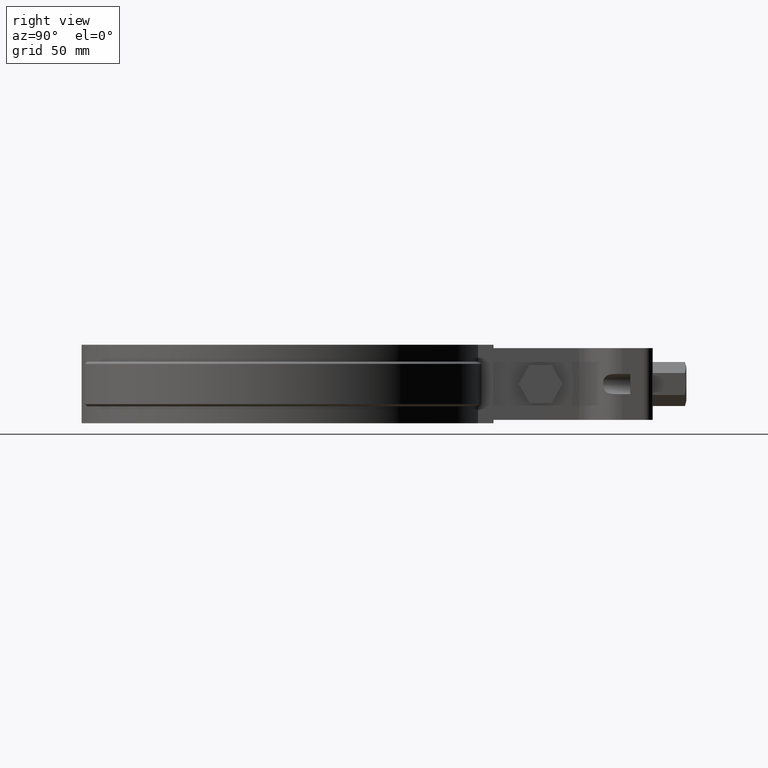
[diagram: clean part render]
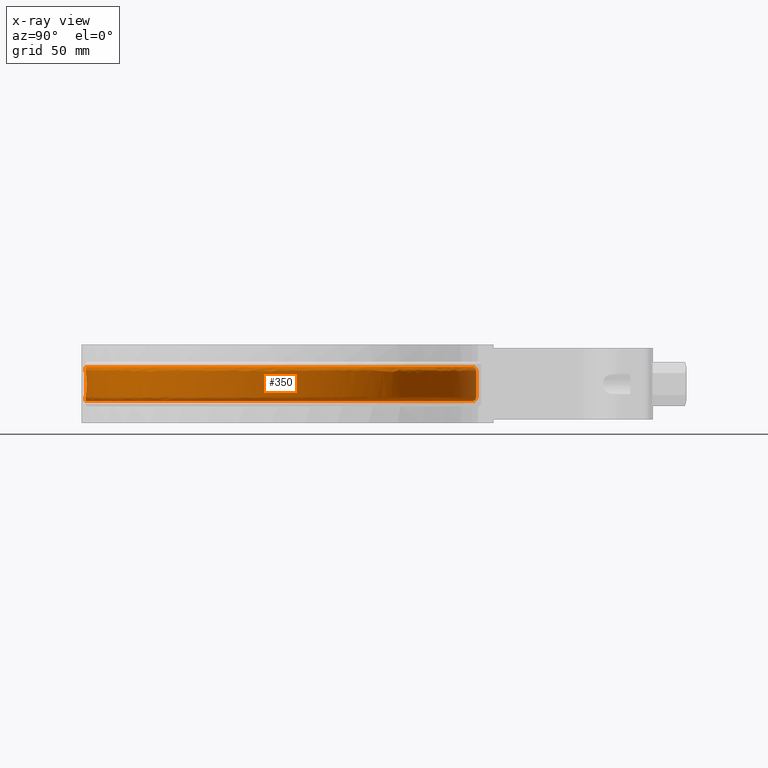
[diagram: x-ray — body ghosted, one internal face saturated and labeled with its STEP entity id]
A machine part, right view, then the same camera in x-ray: the body is ghosted and one INTERNAL B-rep face — a face not visible from any outside direction — is saturated and labeled: STEP entity #350.
In plain terms, the highlighted face is a freeform B-spline surface patch.
Its self-contained STEP definition (entity closure, byte-faithful):
#350 = ADVANCED_FACE( '', ( #567, #568 ), #569, .T. );
#567 = FACE_OUTER_BOUND( '', #1321, .T. );
#568 = FACE_BOUND( '', #1322, .T. );
#569 = B_SPLINE_SURFACE_WITH_KNOTS( '', 3, 3, ( ( #1323, #1324, #1325, #1326, #1327, #1328, #1329, #1330, #1331, #1332, #1333, #1334, #1335, #1336, #1337, #1338, #1339 ), ( #1340, #1341, #1342, #1343, #1344, #1345, #1346, #1347, #1348, #1349, #1350, #1351, #1352, #1353, #1354, #1355, #1356 ), ( #1357, #1358, #1359, #1360, #1361, #1362, #1363, #1364, #1365, #1366, #1367, #1368, #1369, #1370, #1371, #1372, #1373 ), ( #1374, #1375, #1376, #1377, #1378, #1379, #1380, #1381, #1382, #1383, #1384, #1385, #1386, #1387, #1388, #1389, #1390 ), ( #1391, #1392, #1393, #1394, #1395, #1396, #1397, #1398, #1399, #1400, #1401, #1402, #1403, #1404, #1405, #1406, #1407 ), ( #1408, #1409, #1410, #1411, #1412, #1413, #1414, #1415, #1416, #1417, #1418, #1419, #1420, #1421, #1422, #1423, #1424 ), ( #1425, #1426, #1427, #1428, #1429, #1430, #1431, #1432, #1433, #1434, #1435, #1436, #1437, #1438, #1439, #1440, #1441 ), ( #1442, #1443, #1444, #1445, #1446, #1447, #1448, #1449, #1450, #1451, #1452, #1453, #1454, #1455, #1456, #1457, #1458 ), ( #1459, #1460, #1461, #1462, #1463, #1464, #1465, #1466, #1467, #1468, #1469, #1470, #1471, #1472, #1473, #1474, #1475 ), ( #1476, #1477, #1478, #1479, #1480, #1481, #1482, #1483, #1484, #1485, #1486, #1487, #1488, #1489, #1490, #1491, #1492 ), ( #1493, #1494, #1495, #1496, #1497, #1498, #1499, #1500, #1501, #1502, #1503, #1504, #1505, #1506, #1507, #1508, #1509 ), ( #1510, #1511, #1512, #1513, #1514, #1515, #1516, #1517, #1518, #1519, #1520, #1521, #1522, #1523, #1524, #1525, #1526 ), ( #1527, #1528, #1529, #1530, #1531, #1532, #1533, #1534, #1535, #1536, #1537, #1538, #1539, #1540, #1541, #1542, #1543 ), ( #1544, #1545, #1546, #1547, #1548, #1549, #1550, #1551, #1552, #1553, #1554, #1555, #1556, #1557, #1558, #1559, #1560 ), ( #1561, #1562, #1563, #1564, #1565, #1566, #1567, #1568, #1569, #1570, #1571, #1572, #1573, #1574, #1575, #1576, #1577 ), ( #1578, #1579, #1580, #1581, #1582, #1583, #1584, #1585, #1586, #1587, #1588, #1589, #1590, #1591, #1592, #1593, #1594 ), ( #1595, #1596, #1597, #1598, #1599, #1600, #1601, #1602, #1603, #1604, #1605, #1606, #1607, #1608, #1609, #1610, #1611 ), ( #1612, #1613, #1614, #1615, #1616, #1617, #1618, #1619, #1620, #1621, #1622, #1623, #1624, #1625, #1626, #1627, #1628 ), ( #1629, #1630, #1631, #1632, #1633, #1634, #1635, #1636, #1637, #1638, #1639, #1640, #1641, #1642, #1643, #1644, #1645 ), ( #1646, #1647, #1648, #1649, #1650, #1651, #1652, #1653, #1654, #1655, #1656, #1657, #1658, #1659, #1660, #1661, #1662 ), ( #1663, #1664, #1665, #1666, #1667, #1668, #1669, #1670, #1671, #1672, #1673, #1674, #1675, #1676, #1677, #1678, #1679 ), ( #1680, #1681, #1682, #1683, #1684, #1685, #1686, #1687, #1688, #1689, #1690, #1691, #1692, #1693, #1694, #1695, #1696 ) ), .UNSPECIFIED., .F., .F., .F., ( 4, 3, 1, 1, 1, 3, 3, 1, 1, 1, 3, 4 ), ( 4, 1, 1, 1, 1, 1, 1, 1, 1, 1, 1, 1, 1, 1, 4 ), ( 0.000000000000000, 0.0909090909090909, 0.181818181818182, 0.272727272727273, 0.363636363636364, 0.454545454545455, 0.545454545454545, 0.636363636363636, 0.727272727272727, 0.818181818181818, 0.909090909090909, 1.00000000000000 ), ( 2.94823482327086, 4.00000000000000, 5.00000000000000, 6.00000000000000, 7.00000000000000, 8.00000000000000, 9.00000000000000, 10.0000000000000, 11.0000000000000, 12.0000000000000, 13.0000000000000, 14.0000000000000, 15.0000000000000, 16.0000000000000, 17.0000000000000 ), .UNSPECIFIED. );
#1321 = EDGE_LOOP( '', ( #3091, #3092, #3093, #3094, #3095, #3096, #3097, #3098, #3099, #3100, #3101, #3102 ) );
#1322 = EDGE_LOOP( '', ( #3103, #3104, #3105, #3106, #3107, #3108, #3109, #3110, #3111, #3112 ) );
#1323 = CARTESIAN_POINT( '', ( -4.57364982241989, 84.5836677296671, -25.5000000000000 ) );
#1324 = CARTESIAN_POINT( '', ( -17.6289075040332, 83.8786057571758, -25.5000000000000 ) );
#1325 = CARTESIAN_POINT( '', ( -42.7949631398831, 76.4840463416153, -25.5000000000000 ) );
#1326 = CARTESIAN_POINT( '', ( -71.5765301860860, 50.3150624062422, -25.5000000000000 ) );
#1327 = CARTESIAN_POINT( '', ( -86.2010382005230, 14.9802997650067, -25.5000000000000 ) );
#1328 = CARTESIAN_POINT( '', ( -84.3560386872710, -23.2170530818947, -25.5000000000000 ) );
#1329 = CARTESIAN_POINT( '', ( -66.3958128703364, -56.9787657435621, -25.5000000000000 ) );
#1330 = CARTESIAN_POINT( '', ( -35.7510476442179, -79.8551501338733, -25.5000000000000 ) );
#1331 = CARTESIAN_POINT( '', ( 1.72366984717811, -87.4757758923789, -25.5000000000000 ) );
#1332 = CARTESIAN_POINT( '', ( 38.8690932069321, -78.3847895444416, -25.5000000000000 ) );
#1333 = CARTESIAN_POINT( '', ( 68.5888824890438, -54.3189745457491, -25.5000000000000 ) );
#1334 = CARTESIAN_POINT( '', ( 85.2051688816525, -19.8758519526583, -25.5000000000000 ) );
#1335 = CARTESIAN_POINT( '', ( 85.5439845515432, 18.3641744961299, -25.5000000000000 ) );
#1336 = CARTESIAN_POINT( '', ( 69.5389085496657, 53.0967294981208, -25.5000000000000 ) );
#1337 = CARTESIAN_POINT( '', ( 40.2539121158271, 77.6822908585602, -25.5000000000000 ) );
#1338 = CARTESIAN_POINT( '', ( 15.5913724137731, 84.1869914504030, -25.5000000000000 ) );
#1339 = CARTESIAN_POINT( '', ( 3.16786611963157, 84.6476903824596, -25.5000000000000 ) );
#1340 = CARTESIAN_POINT( '', ( -4.55496444969863, 85.3881924763306, -24.6952621458757 ) );
#1341 = CARTESIAN_POINT( '', ( -17.7369452271908, 84.6860194912804, -24.6952621458757 ) );
#1342 = CARTESIAN_POINT( '', ( -43.1436016186587, 77.2397006891381, -24.6952621458756 ) );
#1343 = CARTESIAN_POINT( '', ( -72.2180949023918, 50.8438436478181, -24.6952621458756 ) );
#1344 = CARTESIAN_POINT( '', ( -87.0065669347491, 15.1850363934881, -24.6952621458756 ) );
#1345 = CARTESIAN_POINT( '', ( -85.1720234413700, -23.3754745127051, -24.6952621458756 ) );
#1346 = CARTESIAN_POINT( '', ( -67.0662632546146, -57.4700799662433, -24.6952621458756 ) );
#1347 = CARTESIAN_POINT( '', ( -36.1479063010775, -80.5854951527206, -24.6952621458757 ) );
#1348 = CARTESIAN_POINT( '', ( 1.67622671237653, -88.3056245388004, -24.6952621458756 ) );
#1349 = CARTESIAN_POINT( '', ( 39.1801292474760, -79.1556054897633, -24.6952621458757 ) );
#1350 = CARTESIAN_POINT( '', ( 69.1989697488409, -54.8834981667083, -24.6952621458757 ) );
#1351 = CARTESIAN_POINT( '', ( 85.9977817595525, -20.1262382431158, -24.6952621458757 ) );
#1352 = CARTESIAN_POINT( '', ( 86.3675983528669, 18.4757716958029, -24.6952621458756 ) );
#1353 = CARTESIAN_POINT( '', ( 70.2365577638987, 53.5489467694972, -24.6952621458756 ) );
#1354 = CARTESIAN_POINT( '', ( 40.6908980108431, 78.3888980374747, -24.6952621458757 ) );
#1355 = CARTESIAN_POINT( '', ( 15.8024552811718, 84.9727924215859, -24.6952621458756 ) );
#1356 = CARTESIAN_POINT( '', ( 3.25958140787082, 85.4471847975520, -24.6952621458756 ) );
#1357 = CARTESIAN_POINT( '', ( -4.53627907697736, 86.1927172229942, -23.8905242917513 ) );
#1358 = CARTESIAN_POINT( '', ( -17.8449829503484, 85.4934332253851, -23.8905242917513 ) );
#1359 = CARTESIAN_POINT( '', ( -43.4922400974343, 77.9953550366609, -23.8905242917513 ) );
#1360 = CARTESIAN_POINT( '', ( -72.8596596186976, 51.3726248893941, -23.8905242917513 ) );
#1361 = CARTESIAN_POINT( '', ( -87.8120956689751, 15.3897730219694, -23.8905242917513 ) );
#1362 = CARTESIAN_POINT( '', ( -85.9880081954690, -23.5338959435156, -23.8905242917513 ) );
#1363 = CARTESIAN_POINT( '', ( -67.7367136388928, -57.9613941889244, -23.8905242917513 ) );
#1364 = CARTESIAN_POINT( '', ( -36.5447649579371, -81.3158401715679, -23.8905242917513 ) );
#1365 = CARTESIAN_POINT( '', ( 1.62878357757494, -89.1354731852219, -23.8905242917513 ) );
#1366 = CARTESIAN_POINT( '', ( 39.4911652880198, -79.9264214350850, -23.8905242917513 ) );
#1367 = CARTESIAN_POINT( '', ( 69.8090570086380, -55.4480217876675, -23.8905242917513 ) );
#1368 = CARTESIAN_POINT( '', ( 86.7903946374526, -20.3766245335732, -23.8905242917513 ) );
#1369 = CARTESIAN_POINT( '', ( 87.1912121541906, 18.5873688954759, -23.8905242917513 ) );
#1370 = CARTESIAN_POINT( '', ( 70.9342069781318, 54.0011640408736, -23.8905242917513 ) );
#1371 = CARTESIAN_POINT( '', ( 41.1278839058592, 79.0955052163892, -23.8905242917513 ) );
#1372 = CARTESIAN_POINT( '', ( 16.0135381485704, 85.7585933927688, -23.8905242917513 ) );
#1373 = CARTESIAN_POINT( '', ( 3.35129669611007, 86.2466792126443, -23.8905242917513 ) );
#1374 = CARTESIAN_POINT( '', ( -4.51759370425610, 86.9972419696578, -23.0857864376269 ) );
#1375 = CARTESIAN_POINT( '', ( -17.9530206735060, 86.3008469594897, -23.0857864376269 ) );
#1376 = CARTESIAN_POINT( '', ( -43.8408785762100, 78.7510093841837, -23.0857864376269 ) );
#1377 = CARTESIAN_POINT( '', ( -73.5012243350034, 51.9014061309700, -23.0857864376269 ) );
#1378 = CARTESIAN_POINT( '', ( -88.6176244032012, 15.5945096504508, -23.0857864376269 ) );
#1379 = CARTESIAN_POINT( '', ( -86.8039929495680, -23.6923173743260, -23.0857864376269 ) );
#1380 = CARTESIAN_POINT( '', ( -68.4071640231710, -58.4527084116056, -23.0857864376269 ) );
#1381 = CARTESIAN_POINT( '', ( -36.9416236147966, -82.0461851904152, -23.0857864376269 ) );
#1382 = CARTESIAN_POINT( '', ( 1.58134044277337, -89.9653218316434, -23.0857864376269 ) );
#1383 = CARTESIAN_POINT( '', ( 39.8022013285636, -80.6972373804067, -23.0857864376269 ) );
#1384 = CARTESIAN_POINT( '', ( 70.4191442684350, -56.0125454086267, -23.0857864376269 ) );
#1385 = CARTESIAN_POINT( '', ( 87.5830075153526, -20.6270108240307, -23.0857864376269 ) );
#1386 = CARTESIAN_POINT( '', ( 88.0148259555144, 18.6989660951490, -23.0857864376269 ) );
#1387 = CARTESIAN_POINT( '', ( 71.6318561923648, 54.4533813122500, -23.0857864376269 ) );
#1388 = CARTESIAN_POINT( '', ( 41.5648698008752, 79.8021123953038, -23.0857864376269 ) );
#1389 = CARTESIAN_POINT( '', ( 16.2246210159691, 86.5443943639516, -23.0857864376269 ) );
#1390 = CARTESIAN_POINT( '', ( 3.44301198434932, 87.0461736277367, -23.0857864376269 ) );
#1391 = CARTESIAN_POINT( '', ( -4.51544455110414, 87.0897767518596, -22.9932271442431 ) );
#1392 = CARTESIAN_POINT( '', ( -17.9654469502905, 86.3937140270871, -22.9932271442431 ) );
#1393 = CARTESIAN_POINT( '', ( -43.8809782572135, 78.8379231935573, -22.9932271442431 ) );
#1394 = CARTESIAN_POINT( '', ( -73.5750157895707, 51.9622254621647, -22.9932271442431 ) );
#1395 = CARTESIAN_POINT( '', ( -88.7102746619882, 15.6180580365059, -22.9932271442431 ) );
#1396 = CARTESIAN_POINT( '', ( -86.8978458382625, -23.7105386815722, -22.9932271442431 ) );
#1397 = CARTESIAN_POINT( '', ( -68.4842778478776, -58.5092183633218, -22.9932271442431 ) );
#1398 = CARTESIAN_POINT( '', ( -36.9872694815393, -82.1301879728423, -22.9932271442431 ) );
#1399 = CARTESIAN_POINT( '', ( 1.57588363095490, -90.0607693167276, -22.9932271442431 ) );
#1400 = CARTESIAN_POINT( '', ( 39.8379760544350, -80.7858950455858, -22.9932271442431 ) );
#1401 = CARTESIAN_POINT( '', ( 70.4893152506746, -56.0774757548091, -22.9932271442431 ) );
#1402 = CARTESIAN_POINT( '', ( 87.6741722189009, -20.6558097403473, -22.9932271442431 ) );
#1403 = CARTESIAN_POINT( '', ( 88.1095563215347, 18.7118017756037, -22.9932271442431 ) );
#1404 = CARTESIAN_POINT( '', ( 71.7120983705701, 54.5053944130133, -22.9932271442431 ) );
#1405 = CARTESIAN_POINT( '', ( 41.6151310200462, 79.8833849001885, -22.9932271442431 ) );
#1406 = CARTESIAN_POINT( '', ( 16.2488993333761, 86.6347755759951, -22.9932271442431 ) );
#1407 = CARTESIAN_POINT( '', ( 3.45356088822952, 87.1381298315439, -22.9932271442431 ) );
#1408 = CARTESIAN_POINT( '', ( -4.51156959102015, 87.2566185551464, -22.7898759680773 ) );
#1409 = CARTESIAN_POINT( '', ( -17.9878517409813, 86.5611549466551, -22.7898759680773 ) );
#1410 = CARTESIAN_POINT( '', ( -43.9532786715082, 78.9946302861919, -22.7898759680773 ) );
#1411 = CARTESIAN_POINT( '', ( -73.7080630508732, 52.0718837619928, -22.7898759680773 ) );
#1412 = CARTESIAN_POINT( '', ( -88.8773246715435, 15.6605161814372, -22.7898759680773 ) );
#1413 = CARTESIAN_POINT( '', ( -87.0670642102181, -23.7433920118213, -22.7898759680773 ) );
#1414 = CARTESIAN_POINT( '', ( -68.6233153996635, -58.6111067778579, -22.7898759680773 ) );
#1415 = CARTESIAN_POINT( '', ( -37.0695697640788, -82.2816464338422, -22.7898759680773 ) );
#1416 = CARTESIAN_POINT( '', ( 1.56604490542569, -90.2328627733904, -22.7898759680773 ) );
#1417 = CARTESIAN_POINT( '', ( 39.9024785002662, -80.9457463402204, -22.7898759680773 ) );
#1418 = CARTESIAN_POINT( '', ( 70.6158347381223, -56.1945462853421, -22.7898759680773 ) );
#1419 = CARTESIAN_POINT( '', ( 87.8385437468192, -20.7077346816142, -22.7898759680773 ) );
#1420 = CARTESIAN_POINT( '', ( 88.2803568001957, 18.7349447281510, -22.7898759680773 ) );
#1421 = CARTESIAN_POINT( '', ( 71.8567763975009, 54.5991749279655, -22.7898759680773 ) );
#1422 = CARTESIAN_POINT( '', ( 41.7057528623671, 80.0299206238370, -22.7898759680773 ) );
#1423 = CARTESIAN_POINT( '', ( 16.2926735570849, 86.7977344552594, -22.7898759680773 ) );
#1424 = CARTESIAN_POINT( '', ( 3.47258074329584, 87.3039284480376, -22.7898759680773 ) );
#1425 = CARTESIAN_POINT( '', ( -4.50725055836836, 87.4425805213247, -22.4418734431229 ) );
#1426 = CARTESIAN_POINT( '', ( -18.0128241330713, 86.7477846881715, -22.4418734431229 ) );
#1427 = CARTESIAN_POINT( '', ( -44.0338647532507, 79.1692960982744, -22.4418734431229 ) );
#1428 = CARTESIAN_POINT( '', ( -73.8563576018731, 52.1941089636034, -22.4418734431229 ) );
#1429 = CARTESIAN_POINT( '', ( -89.0635187045437, 15.7078400532497, -22.4418734431229 ) );
#1430 = CARTESIAN_POINT( '', ( -87.2556751011485, -23.7800103518792, -22.4418734431229 ) );
#1431 = CARTESIAN_POINT( '', ( -68.7782867317480, -58.7246716610265, -22.4418734431229 ) );
#1432 = CARTESIAN_POINT( '', ( -37.1613017044952, -82.4504621182032, -22.4418734431229 ) );
#1433 = CARTESIAN_POINT( '', ( 1.55507865651172, -90.4246782353248, -22.4418734431229 ) );
#1434 = CARTESIAN_POINT( '', ( 39.9743729620484, -81.1239166815903, -22.4418734431230 ) );
#1435 = CARTESIAN_POINT( '', ( 70.7568534287750, -56.3250331633941, -22.4418734431229 ) );
#1436 = CARTESIAN_POINT( '', ( 88.0217523427061, -20.7656102498557, -22.4418734431229 ) );
#1437 = CARTESIAN_POINT( '', ( 88.4707311081346, 18.7607398758544, -22.4418734431229 ) );
#1438 = CARTESIAN_POINT( '', ( 72.0180346062999, 54.7037027417756, -22.4418734431229 ) );
#1439 = CARTESIAN_POINT( '', ( 41.8067600179162, 80.1932494224247, -22.4418734431229 ) );
#1440 = CARTESIAN_POINT( '', ( 16.3414643310304, 86.9793685121755, -22.4418734431229 ) );
#1441 = CARTESIAN_POINT( '', ( 3.49378028426746, 87.4887276776395, -22.4418734431229 ) );
#1442 = CARTESIAN_POINT( '', ( -4.50459091119341, 87.5570953346794, -22.0642686993349 ) );
#1443 = CARTESIAN_POINT( '', ( -18.0282020561918, 86.8627107155492, -22.0642686993349 ) );
#1444 = CARTESIAN_POINT( '', ( -44.0834894173656, 79.2768547742830, -22.0642686993349 ) );
#1445 = CARTESIAN_POINT( '', ( -73.9476769354890, 52.2693748711291, -22.0642686993349 ) );
#1446 = CARTESIAN_POINT( '', ( -89.1781764239418, 15.7369819496235, -22.0642686993349 ) );
#1447 = CARTESIAN_POINT( '', ( -87.3718211143115, -23.8025598143486, -22.0642686993349 ) );
#1448 = CARTESIAN_POINT( '', ( -68.8737176068549, -58.7946045707875, -22.0642686993349 ) );
#1449 = CARTESIAN_POINT( '', ( -37.2177899544924, -82.5544183033482, -22.0642686993349 ) );
#1450 = CARTESIAN_POINT( '', ( 1.54832567377340, -90.5427976135686, -22.0642686993349 ) );
#1451 = CARTESIAN_POINT( '', ( 40.0186453530186, -81.2336334360785, -22.0642686993349 ) );
#1452 = CARTESIAN_POINT( '', ( 70.8436923097112, -56.4053865861528, -22.0642686993349 ) );
#1453 = CARTESIAN_POINT( '', ( 88.1345716390071, -20.8012498488081, -22.0642686993349 ) );
#1454 = CARTESIAN_POINT( '', ( 88.5879630281297, 18.7766244493799, -22.0642686993349 ) );
#1455 = CARTESIAN_POINT( '', ( 72.1173369209724, 54.7680706517029, -22.0642686993349 ) );
#1456 = CARTESIAN_POINT( '', ( 41.8689599171909, 80.2938267999934, -22.0642686993349 ) );
#1457 = CARTESIAN_POINT( '', ( 16.3715095412775, 87.0912182121657, -22.0642686993349 ) );
#1458 = CARTESIAN_POINT( '', ( 3.50683489714052, 87.6025264813458, -22.0642686993349 ) );
#1459 = CARTESIAN_POINT( '', ( -4.50399220922760, 87.5828732816625, -21.8024714832809 ) );
#1460 = CARTESIAN_POINT( '', ( -18.0316637156513, 86.8885812291878, -21.8024714832809 ) );
#1461 = CARTESIAN_POINT( '', ( -44.0946602163490, 79.3010668545065, -21.8024714832808 ) );
#1462 = CARTESIAN_POINT( '', ( -73.9682334457911, 52.2863176623453, -21.8024714832808 ) );
#1463 = CARTESIAN_POINT( '', ( -89.2039865399020, 15.7435419590905, -21.8024714832808 ) );
#1464 = CARTESIAN_POINT( '', ( -87.3979662538083, -23.8076358288048, -21.8024714832808 ) );
#1465 = CARTESIAN_POINT( '', ( -68.8951996489330, -58.8103468733541, -21.8024714832808 ) );
#1466 = CARTESIAN_POINT( '', ( -37.2305057863655, -82.5778194420369, -21.8024714832809 ) );
#1467 = CARTESIAN_POINT( '', ( 1.54680553829131, -90.5693869689616, -21.8024714832808 ) );
#1468 = CARTESIAN_POINT( '', ( 40.0286113243529, -81.2583313122528, -21.8024714832809 ) );
#1469 = CARTESIAN_POINT( '', ( 70.8632402441946, -56.4234746064805, -21.8024714832808 ) );
#1470 = CARTESIAN_POINT( '', ( 88.1599679152924, -20.8092725287163, -21.8024714832809 ) );
#1471 = CARTESIAN_POINT( '', ( 88.6143526115367, 18.7802001587767, -21.8024714832808 ) );
#1472 = CARTESIAN_POINT( '', ( 72.1396904464940, 54.7825602406120, -21.8024714832808 ) );
#1473 = CARTESIAN_POINT( '', ( 41.8829614743596, 80.3164673495495, -21.8024714832809 ) );
#1474 = CARTESIAN_POINT( '', ( 16.3782728919232, 87.1163962267121, -21.8024714832808 ) );
#1475 = CARTESIAN_POINT( '', ( 3.50977356602246, 87.6281432504148, -21.8024714832808 ) );
#1476 = CARTESIAN_POINT( '', ( -4.50399220922760, 87.5828732816625, -21.6715728752538 ) );
#1477 = CARTESIAN_POINT( '', ( -18.0316637156513, 86.8885812291878, -21.6715728752538 ) );
#1478 = CARTESIAN_POINT( '', ( -44.0946602163490, 79.3010668545065, -21.6715728752538 ) );
#1479 = CARTESIAN_POINT( '', ( -73.9682334457911, 52.2863176623453, -21.6715728752538 ) );
#1480 = CARTESIAN_POINT( '', ( -89.2039865399020, 15.7435419590905, -21.6715728752538 ) );
#1481 = CARTESIAN_POINT( '', ( -87.3979662538083, -23.8076358288048, -21.6715728752538 ) );
#1482 = CARTESIAN_POINT( '', ( -68.8951996489330, -58.8103468733541, -21.6715728752538 ) );
#1483 = CARTESIAN_POINT( '', ( -37.2305057863655, -82.5778194420369, -21.6715728752538 ) );
#1484 = CARTESIAN_POINT( '', ( 1.54680553829131, -90.5693869689616, -21.6715728752538 ) );
#1485 = CARTESIAN_POINT( '', ( 40.0286113243529, -81.2583313122528, -21.6715728752538 ) );
#1486 = CARTESIAN_POINT( '', ( 70.8632402441946, -56.4234746064805, -21.6715728752538 ) );
#1487 = CARTESIAN_POINT( '', ( 88.1599679152924, -20.8092725287163, -21.6715728752538 ) );
#1488 = CARTESIAN_POINT( '', ( 88.6143526115367, 18.7802001587767, -21.6715728752538 ) );
#1489 = CARTESIAN_POINT( '', ( 72.1396904464940, 54.7825602406120, -21.6715728752538 ) );
#1490 = CARTESIAN_POINT( '', ( 41.8829614743596, 80.3164673495495, -21.6715728752538 ) );
#1491 = CARTESIAN_POINT( '', ( 16.3782728919232, 87.1163962267121, -21.6715728752538 ) );
#1492 = CARTESIAN_POINT( '', ( 3.50977356602246, 87.6281432504148, -21.6715728752538 ) );
#1493 = CARTESIAN_POINT( '', ( -4.50399220922760, 87.5828732816625, -17.8905242917513 ) );
#1494 = CARTESIAN_POINT( '', ( -18.0316637156513, 86.8885812291878, -17.8905242917513 ) );
#1495 = CARTESIAN_POINT( '', ( -44.0946602163490, 79.3010668545065, -17.8905242917513 ) );
#1496 = CARTESIAN_POINT( '', ( -73.9682334457911, 52.2863176623453, -17.8905242917513 ) );
#1497 = CARTESIAN_POINT( '', ( -89.2039865399020, 15.7435419590905, -17.8905242917513 ) );
#1498 = CARTESIAN_POINT( '', ( -87.3979662538083, -23.8076358288048, -17.8905242917513 ) );
#1499 = CARTESIAN_POINT( '', ( -68.8951996489330, -58.8103468733541, -17.8905242917513 ) );
#1500 = CARTESIAN_POINT( '', ( -37.2305057863655, -82.5778194420369, -17.8905242917513 ) );
#1501 = CARTESIAN_POINT( '', ( 1.54680553829131, -90.5693869689616, -17.8905242917513 ) );
#1502 = CARTESIAN_POINT( '', ( 40.0286113243529, -81.2583313122528, -17.8905242917513 ) );
#1503 = CARTESIAN_POINT( '', ( 70.8632402441946, -56.4234746064805, -17.8905242917513 ) );
#1504 = CARTESIAN_POINT( '', ( 88.1599679152923, -20.8092725287163, -17.8905242917513 ) );
#1505 = CARTESIAN_POINT( '', ( 88.6143526115367, 18.7802001587767, -17.8905242917513 ) );
#1506 = CARTESIAN_POINT( '', ( 72.1396904464940, 54.7825602406120, -17.8905242917513 ) );
#1507 = CARTESIAN_POINT( '', ( 41.8829614743596, 80.3164673495494, -17.8905242917513 ) );
#1508 = CARTESIAN_POINT( '', ( 16.3782728919232, 87.1163962267121, -17.8905242917513 ) );
#1509 = CARTESIAN_POINT( '', ( 3.50977356602246, 87.6281432504148, -17.8905242917513 ) );
#1510 = CARTESIAN_POINT( '', ( -4.50399220922760, 87.5828732816625, -14.1094757082487 ) );
#1511 = CARTESIAN_POINT( '', ( -18.0316637156513, 86.8885812291878, -14.1094757082487 ) );
#1512 = CARTESIAN_POINT( '', ( -44.0946602163490, 79.3010668545065, -14.1094757082487 ) );
#1513 = CARTESIAN_POINT( '', ( -73.9682334457911, 52.2863176623453, -14.1094757082487 ) );
#1514 = CARTESIAN_POINT( '', ( -89.2039865399020, 15.7435419590905, -14.1094757082487 ) );
#1515 = CARTESIAN_POINT( '', ( -87.3979662538083, -23.8076358288048, -14.1094757082487 ) );
#1516 = CARTESIAN_POINT( '', ( -68.8951996489330, -58.8103468733541, -14.1094757082487 ) );
#1517 = CARTESIAN_POINT( '', ( -37.2305057863655, -82.5778194420369, -14.1094757082487 ) );
#1518 = CARTESIAN_POINT( '', ( 1.54680553829131, -90.5693869689616, -14.1094757082487 ) );
#1519 = CARTESIAN_POINT( '', ( 40.0286113243529, -81.2583313122528, -14.1094757082487 ) );
#1520 = CARTESIAN_POINT( '', ( 70.8632402441946, -56.4234746064805, -14.1094757082487 ) );
#1521 = CARTESIAN_POINT( '', ( 88.1599679152923, -20.8092725287163, -14.1094757082487 ) );
#1522 = CARTESIAN_POINT( '', ( 88.6143526115367, 18.7802001587767, -14.1094757082487 ) );
#1523 = CARTESIAN_POINT( '', ( 72.1396904464940, 54.7825602406120, -14.1094757082487 ) );
#1524 = CARTESIAN_POINT( '', ( 41.8829614743596, 80.3164673495494, -14.1094757082487 ) );
#1525 = CARTESIAN_POINT( '', ( 16.3782728919232, 87.1163962267121, -14.1094757082487 ) );
#1526 = CARTESIAN_POINT( '', ( 3.50977356602246, 87.6281432504148, -14.1094757082487 ) );
#1527 = CARTESIAN_POINT( '', ( -4.50399220922760, 87.5828732816625, -10.3284271247462 ) );
#1528 = CARTESIAN_POINT( '', ( -18.0316637156513, 86.8885812291878, -10.3284271247462 ) );
#1529 = CARTESIAN_POINT( '', ( -44.0946602163490, 79.3010668545065, -10.3284271247462 ) );
#1530 = CARTESIAN_POINT( '', ( -73.9682334457911, 52.2863176623453, -10.3284271247462 ) );
#1531 = CARTESIAN_POINT( '', ( -89.2039865399020, 15.7435419590905, -10.3284271247462 ) );
#1532 = CARTESIAN_POINT( '', ( -87.3979662538083, -23.8076358288048, -10.3284271247462 ) );
#1533 = CARTESIAN_POINT( '', ( -68.8951996489330, -58.8103468733541, -10.3284271247462 ) );
#1534 = CARTESIAN_POINT( '', ( -37.2305057863655, -82.5778194420369, -10.3284271247462 ) );
#1535 = CARTESIAN_POINT( '', ( 1.54680553829131, -90.5693869689616, -10.3284271247462 ) );
#1536 = CARTESIAN_POINT( '', ( 40.0286113243529, -81.2583313122528, -10.3284271247462 ) );
#1537 = CARTESIAN_POINT( '', ( 70.8632402441946, -56.4234746064805, -10.3284271247462 ) );
#1538 = CARTESIAN_POINT( '', ( 88.1599679152923, -20.8092725287163, -10.3284271247462 ) );
#1539 = CARTESIAN_POINT( '', ( 88.6143526115367, 18.7802001587767, -10.3284271247462 ) );
#1540 = CARTESIAN_POINT( '', ( 72.1396904464940, 54.7825602406120, -10.3284271247462 ) );
#1541 = CARTESIAN_POINT( '', ( 41.8829614743596, 80.3164673495494, -10.3284271247462 ) );
#1542 = CARTESIAN_POINT( '', ( 16.3782728919232, 87.1163962267121, -10.3284271247462 ) );
#1543 = CARTESIAN_POINT( '', ( 3.50977356602246, 87.6281432504148, -10.3284271247462 ) );
#1544 = CARTESIAN_POINT( '', ( -4.50399220922760, 87.5828732816625, -10.1975285167192 ) );
#1545 = CARTESIAN_POINT( '', ( -18.0316637156513, 86.8885812291878, -10.1975285167192 ) );
#1546 = CARTESIAN_POINT( '', ( -44.0946602163490, 79.3010668545065, -10.1975285167192 ) );
#1547 = CARTESIAN_POINT( '', ( -73.9682334457911, 52.2863176623453, -10.1975285167192 ) );
#1548 = CARTESIAN_POINT( '', ( -89.2039865399020, 15.7435419590905, -10.1975285167191 ) );
#1549 = CARTESIAN_POINT( '', ( -87.3979662538083, -23.8076358288048, -10.1975285167192 ) );
#1550 = CARTESIAN_POINT( '', ( -68.8951996489330, -58.8103468733541, -10.1975285167192 ) );
#1551 = CARTESIAN_POINT( '', ( -37.2305057863655, -82.5778194420369, -10.1975285167192 ) );
#1552 = CARTESIAN_POINT( '', ( 1.54680553829131, -90.5693869689616, -10.1975285167191 ) );
#1553 = CARTESIAN_POINT( '', ( 40.0286113243529, -81.2583313122528, -10.1975285167192 ) );
#1554 = CARTESIAN_POINT( '', ( 70.8632402441946, -56.4234746064805, -10.1975285167192 ) );
#1555 = CARTESIAN_POINT( '', ( 88.1599679152923, -20.8092725287163, -10.1975285167192 ) );
#1556 = CARTESIAN_POINT( '', ( 88.6143526115367, 18.7802001587767, -10.1975285167192 ) );
#1557 = CARTESIAN_POINT( '', ( 72.1396904464940, 54.7825602406120, -10.1975285167191 ) );
#1558 = CARTESIAN_POINT( '', ( 41.8829614743596, 80.3164673495494, -10.1975285167192 ) );
#1559 = CARTESIAN_POINT( '', ( 16.3782728919232, 87.1163962267121, -10.1975285167192 ) );
#1560 = CARTESIAN_POINT( '', ( 3.50977356602246, 87.6281432504148, -10.1975285167192 ) );
#1561 = CARTESIAN_POINT( '', ( -4.50459091119341, 87.5570953346794, -9.93573130066509 ) );
#1562 = CARTESIAN_POINT( '', ( -18.0282020561918, 86.8627107155492, -9.93573130066509 ) );
#1563 = CARTESIAN_POINT( '', ( -44.0834894173656, 79.2768547742830, -9.93573130066508 ) );
#1564 = CARTESIAN_POINT( '', ( -73.9476769354890, 52.2693748711291, -9.93573130066508 ) );
#1565 = CARTESIAN_POINT( '', ( -89.1781764239418, 15.7369819496235, -9.93573130066508 ) );
#1566 = CARTESIAN_POINT( '', ( -87.3718211143115, -23.8025598143486, -9.93573130066508 ) );
#1567 = CARTESIAN_POINT( '', ( -68.8737176068549, -58.7946045707875, -9.93573130066508 ) );
#1568 = CARTESIAN_POINT( '', ( -37.2177899544924, -82.5544183033482, -9.93573130066509 ) );
#1569 = CARTESIAN_POINT( '', ( 1.54832567377340, -90.5427976135686, -9.93573130066508 ) );
#1570 = CARTESIAN_POINT( '', ( 40.0186453530186, -81.2336334360785, -9.93573130066509 ) );
#1571 = CARTESIAN_POINT( '', ( 70.8436923097112, -56.4053865861528, -9.93573130066508 ) );
#1572 = CARTESIAN_POINT( '', ( 88.1345716390071, -20.8012498488081, -9.93573130066509 ) );
#1573 = CARTESIAN_POINT( '', ( 88.5879630281297, 18.7766244493799, -9.93573130066508 ) );
#1574 = CARTESIAN_POINT( '', ( 72.1173369209724, 54.7680706517029, -9.93573130066508 ) );
#1575 = CARTESIAN_POINT( '', ( 41.8689599171908, 80.2938267999934, -9.93573130066509 ) );
#1576 = CARTESIAN_POINT( '', ( 16.3715095412775, 87.0912182121657, -9.93573130066508 ) );
#1577 = CARTESIAN_POINT( '', ( 3.50683489714052, 87.6025264813458, -9.93573130066508 ) );
#1578 = CARTESIAN_POINT( '', ( -4.50725055836836, 87.4425805213247, -9.55812655687707 ) );
#1579 = CARTESIAN_POINT( '', ( -18.0128241330713, 86.7477846881715, -9.55812655687707 ) );
#1580 = CARTESIAN_POINT( '', ( -44.0338647532507, 79.1692960982744, -9.55812655687706 ) );
#1581 = CARTESIAN_POINT( '', ( -73.8563576018731, 52.1941089636034, -9.55812655687706 ) );
#1582 = CARTESIAN_POINT( '', ( -89.0635187045437, 15.7078400532497, -9.55812655687706 ) );
#1583 = CARTESIAN_POINT( '', ( -87.2556751011485, -23.7800103518792, -9.55812655687706 ) );
#1584 = CARTESIAN_POINT( '', ( -68.7782867317480, -58.7246716610265, -9.55812655687706 ) );
#1585 = CARTESIAN_POINT( '', ( -37.1613017044952, -82.4504621182032, -9.55812655687707 ) );
#1586 = CARTESIAN_POINT( '', ( 1.55507865651172, -90.4246782353248, -9.55812655687706 ) );
#1587 = CARTESIAN_POINT( '', ( 39.9743729620484, -81.1239166815903, -9.55812655687707 ) );
#1588 = CARTESIAN_POINT( '', ( 70.7568534287750, -56.3250331633941, -9.55812655687706 ) );
#1589 = CARTESIAN_POINT( '', ( 88.0217523427061, -20.7656102498557, -9.55812655687707 ) );
#1590 = CARTESIAN_POINT( '', ( 88.4707311081346, 18.7607398758544, -9.55812655687706 ) );
#1591 = CARTESIAN_POINT( '', ( 72.0180346062999, 54.7037027417756, -9.55812655687706 ) );
#1592 = CARTESIAN_POINT( '', ( 41.8067600179162, 80.1932494224247, -9.55812655687707 ) );
#1593 = CARTESIAN_POINT( '', ( 16.3414643310304, 86.9793685121755, -9.55812655687706 ) );
#1594 = CARTESIAN_POINT( '', ( 3.49378028426746, 87.4887276776395, -9.55812655687706 ) );
#1595 = CARTESIAN_POINT( '', ( -4.51156959102015, 87.2566185551464, -9.21012403192272 ) );
#1596 = CARTESIAN_POINT( '', ( -17.9878517409813, 86.5611549466551, -9.21012403192272 ) );
#1597 = CARTESIAN_POINT( '', ( -43.9532786715082, 78.9946302861919, -9.21012403192272 ) );
#1598 = CARTESIAN_POINT( '', ( -73.7080630508732, 52.0718837619928, -9.21012403192272 ) );
#1599 = CARTESIAN_POINT( '', ( -88.8773246715434, 15.6605161814372, -9.21012403192271 ) );
#1600 = CARTESIAN_POINT( '', ( -87.0670642102181, -23.7433920118213, -9.21012403192272 ) );
#1601 = CARTESIAN_POINT( '', ( -68.6233153996635, -58.6111067778579, -9.21012403192271 ) );
#1602 = CARTESIAN_POINT( '', ( -37.0695697640788, -82.2816464338423, -9.21012403192272 ) );
#1603 = CARTESIAN_POINT( '', ( 1.56604490542569, -90.2328627733904, -9.21012403192271 ) );
#1604 = CARTESIAN_POINT( '', ( 39.9024785002662, -80.9457463402204, -9.21012403192272 ) );
#1605 = CARTESIAN_POINT( '', ( 70.6158347381223, -56.1945462853421, -9.21012403192272 ) );
#1606 = CARTESIAN_POINT( '', ( 87.8385437468192, -20.7077346816142, -9.21012403192272 ) );
#1607 = CARTESIAN_POINT( '', ( 88.2803568001957, 18.7349447281510, -9.21012403192272 ) );
#1608 = CARTESIAN_POINT( '', ( 71.8567763975008, 54.5991749279655, -9.21012403192271 ) );
#1609 = CARTESIAN_POINT( '', ( 41.7057528623671, 80.0299206238370, -9.21012403192272 ) );
#1610 = CARTESIAN_POINT( '', ( 16.2926735570849, 86.7977344552593, -9.21012403192272 ) );
#1611 = CARTESIAN_POINT( '', ( 3.47258074329583, 87.3039284480376, -9.21012403192272 ) );
#1612 = CARTESIAN_POINT( '', ( -4.51544455110414, 87.0897767518596, -9.00677285575689 ) );
#1613 = CARTESIAN_POINT( '', ( -17.9654469502905, 86.3937140270870, -9.00677285575689 ) );
#1614 = CARTESIAN_POINT( '', ( -43.8809782572135, 78.8379231935573, -9.00677285575689 ) );
#1615 = CARTESIAN_POINT( '', ( -73.5750157895707, 51.9622254621647, -9.00677285575689 ) );
#1616 = CARTESIAN_POINT( '', ( -88.7102746619882, 15.6180580365059, -9.00677285575689 ) );
#1617 = CARTESIAN_POINT( '', ( -86.8978458382625, -23.7105386815722, -9.00677285575689 ) );
#1618 = CARTESIAN_POINT( '', ( -68.4842778478776, -58.5092183633218, -9.00677285575689 ) );
#1619 = CARTESIAN_POINT( '', ( -36.9872694815393, -82.1301879728423, -9.00677285575689 ) );
#1620 = CARTESIAN_POINT( '', ( 1.57588363095490, -90.0607693167276, -9.00677285575689 ) );
#1621 = CARTESIAN_POINT( '', ( 39.8379760544350, -80.7858950455858, -9.00677285575689 ) );
#1622 = CARTESIAN_POINT( '', ( 70.4893152506746, -56.0774757548091, -9.00677285575689 ) );
#1623 = CARTESIAN_POINT( '', ( 87.6741722189009, -20.6558097403473, -9.00677285575689 ) );
#1624 = CARTESIAN_POINT( '', ( 88.1095563215347, 18.7118017756037, -9.00677285575689 ) );
#1625 = CARTESIAN_POINT( '', ( 71.7120983705701, 54.5053944130133, -9.00677285575689 ) );
#1626 = CARTESIAN_POINT( '', ( 41.6151310200462, 79.8833849001885, -9.00677285575689 ) );
#1627 = CARTESIAN_POINT( '', ( 16.2488993333761, 86.6347755759951, -9.00677285575689 ) );
#1628 = CARTESIAN_POINT( '', ( 3.45356088822952, 87.1381298315439, -9.00677285575689 ) );
#1629 = CARTESIAN_POINT( '', ( -4.51759370425610, 86.9972419696578, -8.91421356237310 ) );
#1630 = CARTESIAN_POINT( '', ( -17.9530206735060, 86.3008469594897, -8.91421356237310 ) );
#1631 = CARTESIAN_POINT( '', ( -43.8408785762100, 78.7510093841837, -8.91421356237309 ) );
#1632 = CARTESIAN_POINT( '', ( -73.5012243350034, 51.9014061309700, -8.91421356237310 ) );
#1633 = CARTESIAN_POINT( '', ( -88.6176244032012, 15.5945096504508, -8.91421356237309 ) );
#1634 = CARTESIAN_POINT( '', ( -86.8039929495680, -23.6923173743260, -8.91421356237309 ) );
#1635 = CARTESIAN_POINT( '', ( -68.4071640231710, -58.4527084116056, -8.91421356237309 ) );
#1636 = CARTESIAN_POINT( '', ( -36.9416236147966, -82.0461851904152, -8.91421356237310 ) );
#1637 = CARTESIAN_POINT( '', ( 1.58134044277335, -89.9653218316434, -8.91421356237309 ) );
#1638 = CARTESIAN_POINT( '', ( 39.8022013285636, -80.6972373804067, -8.91421356237310 ) );
#1639 = CARTESIAN_POINT( '', ( 70.4191442684350, -56.0125454086266, -8.91421356237310 ) );
#1640 = CARTESIAN_POINT( '', ( 87.5830075153526, -20.6270108240307, -8.91421356237310 ) );
#1641 = CARTESIAN_POINT( '', ( 88.0148259555143, 18.6989660951490, -8.91421356237309 ) );
#1642 = CARTESIAN_POINT( '', ( 71.6318561923648, 54.4533813122500, -8.91421356237309 ) );
#1643 = CARTESIAN_POINT( '', ( 41.5648698008752, 79.8021123953037, -8.91421356237310 ) );
#1644 = CARTESIAN_POINT( '', ( 16.2246210159691, 86.5443943639516, -8.91421356237309 ) );
#1645 = CARTESIAN_POINT( '', ( 3.44301198434932, 87.0461736277367, -8.91421356237309 ) );
#1646 = CARTESIAN_POINT( '', ( -4.53627907697736, 86.1927172229942, -8.10947570824873 ) );
#1647 = CARTESIAN_POINT( '', ( -17.8449829503484, 85.4934332253851, -8.10947570824873 ) );
#1648 = CARTESIAN_POINT( '', ( -43.4922400974343, 77.9953550366609, -8.10947570824873 ) );
#1649 = CARTESIAN_POINT( '', ( -72.8596596186976, 51.3726248893941, -8.10947570824873 ) );
#1650 = CARTESIAN_POINT( '', ( -87.8120956689751, 15.3897730219694, -8.10947570824873 ) );
#1651 = CARTESIAN_POINT( '', ( -85.9880081954690, -23.5338959435156, -8.10947570824873 ) );
#1652 = CARTESIAN_POINT( '', ( -67.7367136388929, -57.9613941889244, -8.10947570824873 ) );
#1653 = CARTESIAN_POINT( '', ( -36.5447649579370, -81.3158401715679, -8.10947570824873 ) );
#1654 = CARTESIAN_POINT( '', ( 1.62878357757494, -89.1354731852219, -8.10947570824873 ) );
#1655 = CARTESIAN_POINT( '', ( 39.4911652880198, -79.9264214350850, -8.10947570824873 ) );
#1656 = CARTESIAN_POINT( '', ( 69.8090570086379, -55.4480217876674, -8.10947570824873 ) );
#1657 = CARTESIAN_POINT( '', ( 86.7903946374526, -20.3766245335732, -8.10947570824873 ) );
#1658 = CARTESIAN_POINT( '', ( 87.1912121541906, 18.5873688954759, -8.10947570824873 ) );
#1659 = CARTESIAN_POINT( '', ( 70.9342069781318, 54.0011640408736, -8.10947570824873 ) );
#1660 = CARTESIAN_POINT( '', ( 41.1278839058592, 79.0955052163892, -8.10947570824873 ) );
#1661 = CARTESIAN_POINT( '', ( 16.0135381485704, 85.7585933927688, -8.10947570824873 ) );
#1662 = CARTESIAN_POINT( '', ( 3.35129669611007, 86.2466792126443, -8.10947570824873 ) );
#1663 = CARTESIAN_POINT( '', ( -4.55496444969862, 85.3881924763306, -7.30473785412437 ) );
#1664 = CARTESIAN_POINT( '', ( -17.7369452271908, 84.6860194912804, -7.30473785412437 ) );
#1665 = CARTESIAN_POINT( '', ( -43.1436016186587, 77.2397006891381, -7.30473785412437 ) );
#1666 = CARTESIAN_POINT( '', ( -72.2180949023918, 50.8438436478181, -7.30473785412437 ) );
#1667 = CARTESIAN_POINT( '', ( -87.0065669347491, 15.1850363934881, -7.30473785412436 ) );
#1668 = CARTESIAN_POINT( '', ( -85.1720234413700, -23.3754745127051, -7.30473785412437 ) );
#1669 = CARTESIAN_POINT( '', ( -67.0662632546146, -57.4700799662433, -7.30473785412437 ) );
#1670 = CARTESIAN_POINT( '', ( -36.1479063010775, -80.5854951527206, -7.30473785412437 ) );
#1671 = CARTESIAN_POINT( '', ( 1.67622671237653, -88.3056245388004, -7.30473785412436 ) );
#1672 = CARTESIAN_POINT( '', ( 39.1801292474759, -79.1556054897633, -7.30473785412437 ) );
#1673 = CARTESIAN_POINT( '', ( 69.1989697488409, -54.8834981667082, -7.30473785412437 ) );
#1674 = CARTESIAN_POINT( '', ( 85.9977817595525, -20.1262382431158, -7.30473785412437 ) );
#1675 = CARTESIAN_POINT( '', ( 86.3675983528669, 18.4757716958029, -7.30473785412437 ) );
#1676 = CARTESIAN_POINT( '', ( 70.2365577638987, 53.5489467694972, -7.30473785412437 ) );
#1677 = CARTESIAN_POINT( '', ( 40.6908980108431, 78.3888980374747, -7.30473785412437 ) );
#1678 = CARTESIAN_POINT( '', ( 15.8024552811718, 84.9727924215859, -7.30473785412437 ) );
#1679 = CARTESIAN_POINT( '', ( 3.25958140787082, 85.4471847975519, -7.30473785412437 ) );
#1680 = CARTESIAN_POINT( '', ( -4.57364982241989, 84.5836677296671, -6.50000000000000 ) );
#1681 = CARTESIAN_POINT( '', ( -17.6289075040332, 83.8786057571758, -6.50000000000000 ) );
#1682 = CARTESIAN_POINT( '', ( -42.7949631398831, 76.4840463416153, -6.50000000000000 ) );
#1683 = CARTESIAN_POINT( '', ( -71.5765301860860, 50.3150624062422, -6.50000000000000 ) );
#1684 = CARTESIAN_POINT( '', ( -86.2010382005230, 14.9802997650067, -6.50000000000000 ) );
#1685 = CARTESIAN_POINT( '', ( -84.3560386872710, -23.2170530818947, -6.50000000000000 ) );
#1686 = CARTESIAN_POINT( '', ( -66.3958128703364, -56.9787657435621, -6.50000000000000 ) );
#1687 = CARTESIAN_POINT( '', ( -35.7510476442179, -79.8551501338733, -6.50000000000000 ) );
#1688 = CARTESIAN_POINT( '', ( 1.72366984717811, -87.4757758923789, -6.50000000000000 ) );
#1689 = CARTESIAN_POINT( '', ( 38.8690932069321, -78.3847895444416, -6.50000000000001 ) );
#1690 = CARTESIAN_POINT( '', ( 68.5888824890438, -54.3189745457490, -6.50000000000000 ) );
#1691 = CARTESIAN_POINT( '', ( 85.2051688816525, -19.8758519526583, -6.50000000000000 ) );
#1692 = CARTESIAN_POINT( '', ( 85.5439845515432, 18.3641744961299, -6.50000000000000 ) );
#1693 = CARTESIAN_POINT( '', ( 69.5389085496657, 53.0967294981207, -6.50000000000000 ) );
#1694 = CARTESIAN_POINT( '', ( 40.2539121158271, 77.6822908585602, -6.50000000000000 ) );
#1695 = CARTESIAN_POINT( '', ( 15.5913724137731, 84.1869914504030, -6.50000000000000 ) );
#1696 = CARTESIAN_POINT( '', ( 3.16786611963157, 84.6476903824596, -6.50000000000000 ) );
#3091 = ORIENTED_EDGE( '', *, *, #5120, .F. );
#3092 = ORIENTED_EDGE( '', *, *, #5121, .F. );
#3093 = ORIENTED_EDGE( '', *, *, #5122, .F. );
#3094 = ORIENTED_EDGE( '', *, *, #5123, .F. );
#3095 = ORIENTED_EDGE( '', *, *, #5124, .F. );
#3096 = ORIENTED_EDGE( '', *, *, #5125, .F. );
#3097 = ORIENTED_EDGE( '', *, *, #5126, .F. );
#3098 = ORIENTED_EDGE( '', *, *, #5079, .F. );
#3099 = ORIENTED_EDGE( '', *, *, #5078, .F. );
#3100 = ORIENTED_EDGE( '', *, *, #5077, .F. );
#3101 = ORIENTED_EDGE( '', *, *, #5076, .F. );
#3102 = ORIENTED_EDGE( '', *, *, #5075, .F. );
#3103 = ORIENTED_EDGE( '', *, *, #5127, .F. );
#3104 = ORIENTED_EDGE( '', *, *, #5128, .F. );
#3105 = ORIENTED_EDGE( '', *, *, #5129, .F. );
#3106 = ORIENTED_EDGE( '', *, *, #5130, .F. );
#3107 = ORIENTED_EDGE( '', *, *, #5131, .F. );
#3108 = ORIENTED_EDGE( '', *, *, #5132, .F. );
#3109 = ORIENTED_EDGE( '', *, *, #5133, .F. );
#3110 = ORIENTED_EDGE( '', *, *, #5134, .F. );
#3111 = ORIENTED_EDGE( '', *, *, #5135, .F. );
#3112 = ORIENTED_EDGE( '', *, *, #5136, .F. );
#5075 = EDGE_CURVE( '', #5645, #5646, #5647, .T. );
#5076 = EDGE_CURVE( '', #5646, #5648, #5649, .T. );
#5077 = EDGE_CURVE( '', #5648, #5650, #5651, .T. );
#5078 = EDGE_CURVE( '', #5650, #5652, #5653, .T. );
#5079 = EDGE_CURVE( '', #5652, #5654, #5655, .T. );
#5120 = EDGE_CURVE( '', #5726, #5645, #5727, .T. );
#5121 = EDGE_CURVE( '', #5728, #5726, #5729, .T. );
#5122 = EDGE_CURVE( '', #5730, #5728, #5731, .T. );
#5123 = EDGE_CURVE( '', #5732, #5730, #5733, .T. );
#5124 = EDGE_CURVE( '', #5734, #5732, #5735, .T. );
#5125 = EDGE_CURVE( '', #5736, #5734, #5737, .T. );
#5126 = EDGE_CURVE( '', #5654, #5736, #5738, .T. );
#5127 = EDGE_CURVE( '', #5739, #5740, #5741, .F. );
#5128 = EDGE_CURVE( '', #5742, #5739, #5743, .T. );
#5129 = EDGE_CURVE( '', #5744, #5742, #5745, .T. );
#5130 = EDGE_CURVE( '', #5746, #5744, #5747, .T. );
#5131 = EDGE_CURVE( '', #5748, #5746, #5749, .T. );
#5132 = EDGE_CURVE( '', #5750, #5748, #5751, .F. );
#5133 = EDGE_CURVE( '', #5752, #5750, #5753, .T. );
#5134 = EDGE_CURVE( '', #5754, #5752, #5755, .T. );
#5135 = EDGE_CURVE( '', #5756, #5754, #5757, .T. );
#5136 = EDGE_CURVE( '', #5740, #5756, #5758, .T. );
#5645 = VERTEX_POINT( '', #7507 );
#5646 = VERTEX_POINT( '', #7508 );
#5647 = B_SPLINE_CURVE_WITH_KNOTS( '', 3, ( #7509, #7510, #7511, #7512, #7513, #7514, #7515, #7516 ), .UNSPECIFIED., .F., .F., ( 4, 2, 2, 4 ), ( 2.11038219202008E-017, 0.000424989585193871, 0.000849979170387721, 0.00169995834077540 ), .UNSPECIFIED. );
#5648 = VERTEX_POINT( '', #7517 );
#5649 = B_SPLINE_CURVE_WITH_KNOTS( '', 3, ( #7518, #7519, #7520, #7521, #7522, #7523, #7524, #7525, #7526, #7527 ), .UNSPECIFIED., .F., .F., ( 4, 2, 2, 2, 4 ), ( 3.21392345265808E-017, 0.000422511335006403, 0.000845022670012775, 0.00126753400501915, 0.00169004534002552 ), .UNSPECIFIED. );
#5650 = VERTEX_POINT( '', #7528 );
#5651 = B_SPLINE_CURVE_WITH_KNOTS( '', 3, ( #7529, #7530, #7531, #7532 ), .UNSPECIFIED., .F., .F., ( 4, 4 ), ( 0.000000000000000, 0.0113431452688127 ), .UNSPECIFIED. );
#5652 = VERTEX_POINT( '', #7533 );
#5653 = B_SPLINE_CURVE_WITH_KNOTS( '', 3, ( #7534, #7535, #7536, #7537, #7538, #7539, #7540, #7541, #7542, #7543 ), .UNSPECIFIED., .F., .F., ( 4, 2, 2, 2, 4 ), ( 0.000000000000000, 0.000423073103580503, 0.000846146207161007, 0.00126921931074151, 0.00169229241432201 ), .UNSPECIFIED. );
#5654 = VERTEX_POINT( '', #7544 );
#5655 = B_SPLINE_CURVE_WITH_KNOTS( '', 3, ( #7545, #7546, #7547, #7548, #7549, #7550, #7551, #7552, #7553, #7554 ), .UNSPECIFIED., .F., .F., ( 4, 2, 2, 2, 4 ), ( 3.19042954516165E-017, 0.000425469854043111, 0.000850939708086190, 0.00127640956212927, 0.00170187941617235 ), .UNSPECIFIED. );
#5726 = VERTEX_POINT( '', #7652 );
#5727 = B_SPLINE_CURVE_WITH_KNOTS( '', 3, ( #7653, #7654, #7655, #7656, #7657, #7658, #7659, #7660, #7661, #7662, #7663, #7664, #7665, #7666, #7667, #7668, #7669, #7670, #7671, #7672, #7673, #7674, #7675, #7676, #7677, #7678, #7679, #7680, #7681, #7682, #7683, #7684, #7685, #7686, #7687, #7688, #7689, #7690, #7691, #7692, #7693, #7694, #7695, #7696, #7697, #7698, #7699, #7700, #7701, #7702, #7703, #7704, #7705, #7706, #7707, #7708, #7709, #7710, #7711, #7712, #7713, #7714, #7715, #7716, #7717, #7718, #7719, #7720, #7721, #7722, #7723, #7724, #7725, #7726, #7727, #7728, #7729, #7730, #7731, #7732, #7733, #7734, #7735, #7736, #7737, #7738, #7739, #7740, #7741, #7742, #7743, #7744, #7745, #7746, #7747, #7748, #7749, #7750, #7751, #7752, #7753, #7754, #7755, #7756, #7757, #7758, #7759, #7760, #7761, #7762, #7763, #7764, #7765, #7766, #7767, #7768, #7769, #7770, #7771, #7772, #7773, #7774, #7775, #7776, #7777, #7778, #7779, #7780, #7781, #7782, #7783, #7784, #7785, #7786, #7787, #7788, #7789, #7790, #7791, #7792, #7793, #7794, #7795, #7796, #7797, #7798, #7799, #7800, #7801, #7802, #7803, #7804, #7805, #7806, #7807, #7808, #7809, #7810, #7811, #7812, #7813 ), .UNSPECIFIED., .F., .F., ( 4, 2, 2, 2, 2, 2, 2, 2, 2, 2, 2, 2, 2, 2, 2, 2, 1, 2, 2, 2, 2, 2, 2, 2, 2, 1, 2, 2, 2, 2, 2, 2, 2, 2, 1, 2, 2, 2, 2, 2, 2, 2, 2, 2, 2, 2, 2, 2, 2, 2, 2, 2, 2, 2, 2, 2, 2, 2, 2, 2, 2, 2, 2, 2, 2, 1, 2, 2, 2, 2, 2, 2, 2, 2, 2, 1, 2, 2, 2, 2, 2, 2, 4 ), ( 3.12250225675825E-017, 0.00827436693478241, 0.0165487338695648, 0.0206859173369560, 0.0248231008043472, 0.0330974677391296, 0.0496462016086944, 0.0579205685434769, 0.0620577520108681, 0.0661949354782593, 0.0744693024130418, 0.0786064858804331, 0.0827436693478243, 0.0992924032173895, 0.107566770152172, 0.111703953619563, 0.115841137086955, 0.119978320554346, 0.124115504021737, 0.132389870956520, 0.136527054423911, 0.140664237891302, 0.148938604826085, 0.165487338695650, 0.169624522163041, 0.173761705630433, 0.177898889097824, 0.182036072565215, 0.190310439499998, 0.194447622967389, 0.198584806434781, 0.215133540304346, 0.223407907239129, 0.227545090706520, 0.231682274173911, 0.235819457641303, 0.239956641108694, 0.248231008043477, 0.252368191510868, 0.256505374978259, 0.264779741913042, 0.268916925380433, 0.273054108847824, 0.281328475782607, 0.289602842717390, 0.293740026184781, 0.297877209652172, 0.306151576586955, 0.310288760054346, 0.314425943521738, 0.322700310456520, 0.326837493923912, 0.330974677391303, 0.339249044326086, 0.347523411260869, 0.355797778195651, 0.364072145130434, 0.368209328597825, 0.372346512065217, 0.380620879000000, 0.384758062467391, 0.388895245934782, 0.397169612869565, 0.413718346739130, 0.417855530206522, 0.421992713673913, 0.426129897141305, 0.430267080608696, 0.438541447543479, 0.442678631010870, 0.446815814478261, 0.455090181413044, 0.463364548347827, 0.471638915282610, 0.475776098750001, 0.479913282217392, 0.484050465684784, 0.488187649152175, 0.496462016086958, 0.500599199554349, 0.504736383021741, 0.513010749956524, 0.529559483826089 ), .UNSPECIFIED. );
#5728 = VERTEX_POINT( '', #7814 );
#5729 = B_SPLINE_CURVE_WITH_KNOTS( '', 3, ( #7815, #7816, #7817, #7818, #7819, #7820, #7821, #7822, #7823, #7824 ), .UNSPECIFIED., .F., .F., ( 4, 2, 2, 2, 4 ), ( 0.000000000000000, 0.000425491633193385, 0.000850983266386769, 0.00127647489958015, 0.00170196653277354 ), .UNSPECIFIED. );
#5730 = VERTEX_POINT( '', #7825 );
#5731 = B_SPLINE_CURVE_WITH_KNOTS( '', 3, ( #7826, #7827, #7828, #7829, #7830, #7831, #7832, #7833, #7834, #7835 ), .UNSPECIFIED., .F., .F., ( 4, 2, 2, 2, 4 ), ( 0.000000000000000, 0.000423078274634710, 0.000846156549269420, 0.00126923482390413, 0.00169231309853884 ), .UNSPECIFIED. );
#5732 = VERTEX_POINT( '', #7836 );
#5733 = B_SPLINE_CURVE_WITH_KNOTS( '', 3, ( #7837, #7838, #7839, #7840 ), .UNSPECIFIED., .F., .F., ( 4, 4 ), ( 0.000000000000000, 0.0113431453229291 ), .UNSPECIFIED. );
#5734 = VERTEX_POINT( '', #7841 );
#5735 = B_SPLINE_CURVE_WITH_KNOTS( '', 3, ( #7842, #7843, #7844, #7845, #7846, #7847, #7848, #7849, #7850, #7851 ), .UNSPECIFIED., .F., .F., ( 4, 2, 2, 2, 4 ), ( 0.000000000000000, 0.000422542158349434, 0.000845084316698868, 0.00126762647504830, 0.00169016863339774 ), .UNSPECIFIED. );
#5736 = VERTEX_POINT( '', #7852 );
#5737 = B_SPLINE_CURVE_WITH_KNOTS( '', 3, ( #7853, #7854, #7855, #7856, #7857, #7858, #7859, #7860 ), .UNSPECIFIED., .F., .F., ( 4, 2, 2, 4 ), ( 3.59301393797334E-017, 0.000424985679345745, 0.000849971358691453, 0.00169994271738288 ), .UNSPECIFIED. );
#5738 = B_SPLINE_CURVE_WITH_KNOTS( '', 3, ( #7861, #7862, #7863, #7864, #7865, #7866, #7867, #7868, #7869, #7870, #7871, #7872, #7873, #7874, #7875, #7876, #7877, #7878, #7879, #7880, #7881, #7882, #7883, #7884, #7885, #7886, #7887, #7888, #7889, #7890, #7891, #7892, #7893, #7894, #7895, #7896, #7897, #7898, #7899, #7900, #7901, #7902, #7903, #7904, #7905, #7906, #7907, #7908, #7909, #7910, #7911, #7912, #7913, #7914, #7915, #7916, #7917, #7918, #7919, #7920, #7921, #7922, #7923, #7924, #7925, #7926, #7927, #7928, #7929, #7930, #7931, #7932, #7933, #7934, #7935, #7936, #7937, #7938, #7939, #7940, #7941, #7942, #7943, #7944, #7945, #7946, #7947, #7948, #7949, #7950, #7951, #7952, #7953, #7954, #7955, #7956, #7957, #7958, #7959, #7960, #7961, #7962, #7963, #7964, #7965, #7966, #7967, #7968, #7969, #7970, #7971, #7972, #7973, #7974, #7975, #7976, #7977, #7978, #7979, #7980, #7981, #7982, #7983, #7984, #7985, #7986, #7987, #7988, #7989, #7990, #7991, #7992, #7993, #7994, #7995, #7996, #7997, #7998, #7999, #8000, #8001, #8002, #8003, #8004, #8005, #8006, #8007, #8008, #8009, #8010, #8011, #8012, #8013, #8014 ), .UNSPECIFIED., .F., .F., ( 4, 2, 2, 2, 2, 2, 2, 2, 2, 2, 2, 2, 2, 2, 2, 2, 2, 2, 2, 2, 2, 2, 2, 2, 2, 1, 2, 2, 2, 2, 2, 2, 2, 2, 2, 2, 2, 2, 2, 2, 2, 2, 2, 2, 2, 2, 2, 2, 2, 2, 2, 2, 2, 2, 2, 2, 2, 2, 2, 2, 2, 2, 2, 2, 2, 2, 2, 2, 2, 2, 1, 2, 2, 2, 2, 2, 2, 4 ), ( 0.000000000000000, 0.00827436142974618, 0.0165487228594924, 0.0206859035743655, 0.0248230842892386, 0.0330974457189848, 0.0496461685784773, 0.0579205300082235, 0.0620577107230966, 0.0661948914379697, 0.0744692528677159, 0.0827436142974621, 0.0910179757272082, 0.0951551564420813, 0.0992923371569544, 0.107566698586701, 0.115841060016447, 0.119978240731320, 0.124115421446193, 0.132389782875939, 0.136526963590812, 0.140664144305685, 0.148938505735432, 0.165487228594924, 0.169624409309797, 0.173761590024670, 0.177898770739543, 0.182035951454416, 0.190310312884163, 0.194447493599036, 0.198584674313909, 0.215133397173401, 0.223407758603148, 0.227544939318021, 0.231682120032894, 0.235819300747767, 0.239956481462640, 0.248230842892386, 0.252368023607259, 0.256505204322133, 0.264779565751879, 0.281328288611371, 0.285465469326244, 0.289602650041118, 0.297877011470864, 0.306151372900610, 0.310288553615483, 0.314425734330356, 0.330974457189849, 0.339248818619595, 0.343385999334468, 0.347523180049342, 0.355797541479088, 0.364071902908834, 0.368209083623707, 0.372346264338580, 0.380620625768327, 0.397169348627819, 0.401306529342692, 0.405443710057566, 0.413718071487312, 0.421992432917058, 0.426129613631931, 0.430266794346804, 0.446815517206297, 0.455089878636043, 0.459227059350916, 0.463364240065789, 0.471638601495535, 0.475775782210409, 0.479912962925282, 0.484050143640155, 0.488187324355028, 0.496461685784774, 0.500598866499647, 0.504736047214520, 0.513010408644267, 0.529559131503759 ), .UNSPECIFIED. );
#5739 = VERTEX_POINT( '', #8015 );
#5740 = VERTEX_POINT( '', #8016 );
#5741 = B_SPLINE_CURVE_WITH_KNOTS( '', 3, ( #8017, #8018, #8019, #8020, #8021 ), .UNSPECIFIED., .F., .F., ( 4, 1, 4 ), ( 0.262722700832111, 0.272296444584892, 0.278805966534446 ), .UNSPECIFIED. );
#5742 = VERTEX_POINT( '', #8022 );
#5743 = B_SPLINE_CURVE_WITH_KNOTS( '', 3, ( #8023, #8024, #8025, #8026, #8027, #8028, #8029, #8030, #8031, #8032 ), .UNSPECIFIED., .F., .F., ( 4, 2, 2, 2, 4 ), ( 0.000000000000000, 0.00109216933835195, 0.00218433867670389, 0.00327650801505584, 0.00436867735340778 ), .UNSPECIFIED. );
#5744 = VERTEX_POINT( '', #8033 );
#5745 = B_SPLINE_CURVE_WITH_KNOTS( '', 3, ( #8034, #8035, #8036, #8037, #8038, #8039, #8040, #8041, #8042, #8043, #8044, #8045, #8046 ), .UNSPECIFIED., .F., .F., ( 4, 2, 2, 1, 2, 2, 4 ), ( 0.000000000000000, 0.00165377055578193, 0.00248065583367289, 0.00330754111156385, 0.00413442638945482, 0.00496131166734578, 0.00661508222312771 ), .UNSPECIFIED. );
#5746 = VERTEX_POINT( '', #8047 );
#5747 = B_SPLINE_CURVE_WITH_KNOTS( '', 3, ( #8048, #8049, #8050, #8051, #8052, #8053, #8054, #8055, #8056, #8057, #8058, #8059, #8060, #8061 ), .UNSPECIFIED., .F., .F., ( 4, 2, 2, 2, 2, 2, 4 ), ( 0.000000000000000, 0.00165354771108816, 0.00248032156663224, 0.00330709542217632, 0.00413386927772040, 0.00496064313326448, 0.00661419084435264 ), .UNSPECIFIED. );
#5748 = VERTEX_POINT( '', #8062 );
#5749 = B_SPLINE_CURVE_WITH_KNOTS( '', 3, ( #8063, #8064, #8065, #8066, #8067, #8068, #8069, #8070, #8071, #8072 ), .UNSPECIFIED., .F., .F., ( 4, 2, 2, 2, 4 ), ( 1.05519109601004E-017, 0.00109283952482311, 0.00218567904964620, 0.00327851857446930, 0.00437135809929240 ), .UNSPECIFIED. );
#5750 = VERTEX_POINT( '', #8073 );
#5751 = B_SPLINE_CURVE_WITH_KNOTS( '', 3, ( #8074, #8075, #8076, #8077, #8078 ), .UNSPECIFIED., .F., .F., ( 4, 1, 4 ), ( 0.262759585119902, 0.269256981871469, 0.278812892741993 ), .UNSPECIFIED. );
#5752 = VERTEX_POINT( '', #8079 );
#5753 = B_SPLINE_CURVE_WITH_KNOTS( '', 3, ( #8080, #8081, #8082, #8083, #8084, #8085, #8086, #8087, #8088, #8089 ), .UNSPECIFIED., .F., .F., ( 4, 2, 2, 2, 4 ), ( 0.000000000000000, 0.00109216960270625, 0.00218433920541250, 0.00327650880811875, 0.00436867841082500 ), .UNSPECIFIED. );
#5754 = VERTEX_POINT( '', #8090 );
#5755 = B_SPLINE_CURVE_WITH_KNOTS( '', 3, ( #8091, #8092, #8093, #8094, #8095, #8096, #8097, #8098, #8099, #8100, #8101, #8102, #8103 ), .UNSPECIFIED., .F., .F., ( 4, 2, 2, 1, 2, 2, 4 ), ( 0.000000000000000, 0.00165375982225578, 0.00248063973338367, 0.00330751964451156, 0.00413439955563945, 0.00496127946676733, 0.00661503928902311 ), .UNSPECIFIED. );
#5756 = VERTEX_POINT( '', #8104 );
#5757 = B_SPLINE_CURVE_WITH_KNOTS( '', 3, ( #8105, #8106, #8107, #8108, #8109, #8110, #8111, #8112, #8113, #8114, #8115, #8116, #8117, #8118 ), .UNSPECIFIED., .F., .F., ( 4, 2, 2, 2, 2, 2, 4 ), ( 0.000000000000000, 0.00165353231274708, 0.00248029846912062, 0.00330706462549416, 0.00413383078186770, 0.00496059693824124, 0.00661412925098833 ), .UNSPECIFIED. );
#5758 = B_SPLINE_CURVE_WITH_KNOTS( '', 3, ( #8119, #8120, #8121, #8122, #8123, #8124, #8125, #8126, #8127, #8128 ), .UNSPECIFIED., .F., .F., ( 4, 2, 2, 2, 4 ), ( 8.67361737988404E-018, 0.00109283953976117, 0.00218567907952233, 0.00327851861928349, 0.00437135815904465 ), .UNSPECIFIED. );
#7507 = CARTESIAN_POINT( '', ( -8.74747474747475, 86.1570756557017, -8.39959683687729 ) );
#7508 = CARTESIAN_POINT( '', ( -7.30467787432106, 86.8069315725084, -8.91399277648043 ) );
#7509 = CARTESIAN_POINT( '', ( -8.74747474747475, 86.1570756557016, -8.39959683687723 ) );
#7510 = CARTESIAN_POINT( '', ( -8.60421970110813, 86.1716202521959, -8.39950785808913 ) );
#7511 = CARTESIAN_POINT( '', ( -8.46541455936717, 86.1981140617624, -8.41215652817523 ) );
#7512 = CARTESIAN_POINT( '', ( -8.19595147865898, 86.2729899002422, -8.46075610421857 ) );
#7513 = CARTESIAN_POINT( '', ( -8.06435225870210, 86.3220662234356, -8.49731942059971 ) );
#7514 = CARTESIAN_POINT( '', ( -7.69808258094414, 86.4930952518004, -8.63428486314662 ) );
#7515 = CARTESIAN_POINT( '', ( -7.48436192910793, 86.6411378498149, -8.76350874064605 ) );
#7516 = CARTESIAN_POINT( '', ( -7.30467787432106, 86.8069315725084, -8.91399277648043 ) );
#7517 = CARTESIAN_POINT( '', ( -6.81289175998724, 87.4332740668731, -10.3284273675032 ) );
#7518 = CARTESIAN_POINT( '', ( -7.30467787432102, 86.8069315725083, -8.91399277648041 ) );
#7519 = CARTESIAN_POINT( '', ( -7.21526446831466, 86.8894329467014, -8.98887582723021 ) );
#7520 = CARTESIAN_POINT( '', ( -7.14000487070722, 86.9708940705100, -9.07587638237243 ) );
#7521 = CARTESIAN_POINT( '', ( -7.01330775333553, 87.1234713134477, -9.27768858328486 ) );
#7522 = CARTESIAN_POINT( '', ( -6.96256648793993, 87.1938794301876, -9.39243119176993 ) );
#7523 = CARTESIAN_POINT( '', ( -6.88518315932995, 87.3092335694229, -9.63755010707311 ) );
#7524 = CARTESIAN_POINT( '', ( -6.85739646740417, 87.3556774699826, -9.77135275788400 ) );
#7525 = CARTESIAN_POINT( '', ( -6.82153697881050, 87.4172729211597, -10.0445373086785 ) );
#7526 = CARTESIAN_POINT( '', ( -6.81289175998724, 87.4332740668731, -10.1855780747771 ) );
#7527 = CARTESIAN_POINT( '', ( -6.81289175998724, 87.4332740668731, -10.3284273675032 ) );
#7528 = CARTESIAN_POINT( '', ( -6.81289175998722, 87.4332740668731, -21.6715726363159 ) );
#7529 = CARTESIAN_POINT( '', ( -6.81289175998724, 87.4332740668731, -10.3284271247462 ) );
#7530 = CARTESIAN_POINT( '', ( -6.81289175998724, 87.4332740668731, -14.1094757082487 ) );
#7531 = CARTESIAN_POINT( '', ( -6.81289175998724, 87.4332740668731, -17.8905242917513 ) );
#7532 = CARTESIAN_POINT( '', ( -6.81289175998724, 87.4332740668731, -21.6715728752538 ) );
#7533 = CARTESIAN_POINT( '', ( -7.30442771447271, 86.8071624254823, -23.0857976846116 ) );
#7534 = CARTESIAN_POINT( '', ( -6.81289175998722, 87.4332740668731, -21.6715726363159 ) );
#7535 = CARTESIAN_POINT( '', ( -6.81289175998722, 87.4332740668731, -21.8145621554542 ) );
#7536 = CARTESIAN_POINT( '', ( -6.82144076769876, 87.4174419413100, -21.9545387157254 ) );
#7537 = CARTESIAN_POINT( '', ( -6.85735964542002, 87.3557369732213, -22.2285570400039 ) );
#7538 = CARTESIAN_POINT( '', ( -6.88508337814716, 87.3093914639665, -22.3620545901005 ) );
#7539 = CARTESIAN_POINT( '', ( -6.96246207336027, 87.1940259512490, -22.6073170931459 ) );
#7540 = CARTESIAN_POINT( '', ( -7.01350310164832, 87.1232351498816, -22.7226258483183 ) );
#7541 = CARTESIAN_POINT( '', ( -7.13982834497993, 86.9711075667807, -22.9238391674937 ) );
#7542 = CARTESIAN_POINT( '', ( -7.21494519707391, 86.8897501283378, -23.0108339104547 ) );
#7543 = CARTESIAN_POINT( '', ( -7.30442771447273, 86.8071624254823, -23.0857976846116 ) );
#7544 = CARTESIAN_POINT( '', ( -8.74747474747475, 86.1570756557017, -23.6004031631227 ) );
#7545 = CARTESIAN_POINT( '', ( -7.30442771447273, 86.8071624254823, -23.0857976846116 ) );
#7546 = CARTESIAN_POINT( '', ( -7.39422217155579, 86.7242868185457, -23.1610227855252 ) );
#7547 = CARTESIAN_POINT( '', ( -7.49136507351551, 86.6467228226423, -23.2301591290289 ) );
#7548 = CARTESIAN_POINT( '', ( -7.70237795394580, 86.5036285983396, -23.3545068430141 ) );
#7549 = CARTESIAN_POINT( '', ( -7.81729641404742, 86.4375764364940, -23.4101436457055 ) );
#7550 = CARTESIAN_POINT( '', ( -8.06279020134154, 86.3226503830817, -23.5022448902756 ) );
#7551 = CARTESIAN_POINT( '', ( -8.19147996859567, 86.2744707672372, -23.5381929945831 ) );
#7552 = CARTESIAN_POINT( '', ( -8.46212504017117, 86.1987964930655, -23.5874877076228 ) );
#7553 = CARTESIAN_POINT( '', ( -8.60410851568093, 86.1716315407838, -23.6004922109705 ) );
#7554 = CARTESIAN_POINT( '', ( -8.74747474747475, 86.1570756557016, -23.6004031631228 ) );
#7652 = CARTESIAN_POINT( '', ( 8.74747474747477, 86.1570756557017, -8.39939571974269 ) );
#7653 = CARTESIAN_POINT( '', ( 8.74747474747481, 86.1570756557017, -8.39939571974272 ) );
#7654 = CARTESIAN_POINT( '', ( 11.4922240137649, 85.8784029557255, -8.40076670242478 ) );
#7655 = CARTESIAN_POINT( '', ( 14.2240906231276, 85.4680957266809, -8.40294021859399 ) );
#7656 = CARTESIAN_POINT( '', ( 19.6172416365846, 84.3936251844409, -8.40568872312905 ) );
#7657 = CARTESIAN_POINT( '', ( 22.2826744018313, 83.7293738777395, -8.40626775653654 ) );
#7658 = CARTESIAN_POINT( '', ( 26.2340586455765, 82.5422653801950, -8.40548278574224 ) );
#7659 = CARTESIAN_POINT( '', ( 27.5450695974283, 82.1141162357941, -8.40496426927796 ) );
#7660 = CARTESIAN_POINT( '', ( 30.1437429424136, 81.1961434166325, -8.40358230043875 ) );
#7661 = CARTESIAN_POINT( '', ( 31.4270473659620, 80.7079584944887, -8.40272251341495 ) );
#7662 = CARTESIAN_POINT( '', ( 35.2298133314939, 79.1575374464757, -8.40012819276902 ) );
#7663 = CARTESIAN_POINT( '', ( 37.7022319502656, 78.0096251300060, -8.39831564430369 ) );
#7664 = CARTESIAN_POINT( '', ( 44.9348008238226, 74.2295312038689, -8.39898631643779 ) );
#7665 = CARTESIAN_POINT( '', ( 49.5119858996822, 71.2640750186941, -8.40608765391973 ) );
#7666 = CARTESIAN_POINT( '', ( 55.9950459023411, 66.1190299262989, -8.40804482248753 ) );
#7667 = CARTESIAN_POINT( '', ( 58.0657155791526, 64.3077959861203, -8.40750591504086 ) );
#7668 = CARTESIAN_POINT( '', ( 61.0375634787342, 61.4480742754187, -8.40532459632173 ) );
#7669 = CARTESIAN_POINT( '', ( 62.0057816125879, 60.4709810033828, -8.40438793042244 ) );
#7670 = CARTESIAN_POINT( '', ( 63.8971906746975, 58.4688423075127, -8.40239577057266 ) );
#7671 = CARTESIAN_POINT( '', ( 64.8211777617581, 57.4427639712125, -8.40133965387913 ) );
#7672 = CARTESIAN_POINT( '', ( 67.5115328960379, 54.3078060901252, -8.39868983810979 ) );
#7673 = CARTESIAN_POINT( '', ( 69.2006192245537, 52.1383091472408, -8.39804405663403 ) );
#7674 = CARTESIAN_POINT( '', ( 71.5780154620042, 48.7651509581363, -8.39998581485998 ) );
#7675 = CARTESIAN_POINT( '', ( 72.3446187243021, 47.6205646368584, -8.40093393713182 ) );
#7676 = CARTESIAN_POINT( '', ( 73.8243039241189, 45.2927608433972, -8.40291079244623 ) );
#7677 = CARTESIAN_POINT( '', ( 74.5333748604566, 44.1158933678364, -8.40393289880551 ) );
#7678 = CARTESIAN_POINT( '', ( 77.9280175184344, 38.1680538848005, -8.40829044430911 ) );
#7679 = CARTESIAN_POINT( '', ( 80.1654513461377, 33.2082603563265, -8.40785818045506 ) );
#7680 = CARTESIAN_POINT( '', ( 82.8144860825027, 25.4706287956711, -8.40230108143100 ) );
#7681 = CARTESIAN_POINT( '', ( 83.5788712720607, 22.8414353579968, -8.39992552154779 ) );
#7682 = CARTESIAN_POINT( '', ( 84.5414831875562, 18.8201313366687, -8.39845206423697 ) );
#7683 = CARTESIAN_POINT( '', ( 84.8303546446424, 17.4717973558126, -8.39841533464026 ) );
#7684 = CARTESIAN_POINT( '', ( 85.3425409500580, 14.7683267896556, -8.39929987327873 ) );
#7685 = CARTESIAN_POINT( '', ( 85.7898486741873, 12.0552526769510, -8.40095845441028 ) );
#7686 = CARTESIAN_POINT( '', ( 86.1077046610861, 9.32301615390809, -8.40304442284878 ) );
#7687 = CARTESIAN_POINT( '', ( 86.3605455380344, 6.58115541375207, -8.40492924321527 ) );
#7688 = CARTESIAN_POINT( '', ( 86.4544913442651, 5.20367891010720, -8.40577142118009 ) );
#7689 = CARTESIAN_POINT( '', ( 86.6371336564749, 1.07538968310775, -8.40758807379625 ) );
#7690 = CARTESIAN_POINT( '', ( 86.6274972654570, -1.67426633656421, -8.40777833846473 ) );
#7691 = CARTESIAN_POINT( '', ( 86.4168387720045, -5.79496239970649, -8.40639590310716 ) );
#7692 = CARTESIAN_POINT( '', ( 86.3138631128477, -7.16789535593717, -8.40567654618619 ) );
#7693 = CARTESIAN_POINT( '', ( 86.0418752895469, -9.91248636594927, -8.40393300641344 ) );
#7694 = CARTESIAN_POINT( '', ( 85.8733952388397, -11.2782197765613, -8.40291329521464 ) );
#7695 = CARTESIAN_POINT( '', ( 85.2735727025331, -15.3457096037743, -8.39997464547559 ) );
#7696 = CARTESIAN_POINT( '', ( 84.7476208161496, -18.0223271921978, -8.39816667327924 ) );
#7697 = CARTESIAN_POINT( '', ( 82.7997927507956, -25.9493423058723, -8.39946681111715 ) );
#7698 = CARTESIAN_POINT( '', ( 81.0113065957382, -31.0978370958256, -8.40633159857134 ) );
#7699 = CARTESIAN_POINT( '', ( 78.1403937053055, -37.3568678539039, -8.40756750179827 ) );
#7700 = CARTESIAN_POINT( '', ( 77.5351245345220, -38.5973836239493, -8.40753346671107 ) );
#7701 = CARTESIAN_POINT( '', ( 76.2696722316398, -41.0413286441409, -8.40691397371121 ) );
#7702 = CARTESIAN_POINT( '', ( 74.9473639517912, -43.4524984127441, -8.40574440933076 ) );
#7703 = CARTESIAN_POINT( '', ( 73.5116900380199, -45.7983174974380, -8.40381481184109 ) );
#7704 = CARTESIAN_POINT( '', ( 72.0191196228677, -48.1113382331974, -8.40182946252519 ) );
#7705 = CARTESIAN_POINT( '', ( 71.2433067009841, -49.2529168683574, -8.40080787693705 ) );
#7706 = CARTESIAN_POINT( '', ( 68.8388299240481, -52.6152998054296, -8.39838846619373 ) );
#7707 = CARTESIAN_POINT( '', ( 67.1343211721881, -54.7732343318837, -8.39821398805661 ) );
#7708 = CARTESIAN_POINT( '', ( 64.4261732261468, -57.8853977531554, -8.40044286332534 ) );
#7709 = CARTESIAN_POINT( '', ( 63.4981834885165, -58.9019604724359, -8.40143510721347 ) );
#7710 = CARTESIAN_POINT( '', ( 61.5912877673664, -60.8931320018537, -8.40342476707604 ) );
#7711 = CARTESIAN_POINT( '', ( 60.6145058327803, -61.8653559310326, -8.40441876482228 ) );
#7712 = CARTESIAN_POINT( '', ( 55.6414506007084, -66.5858715063273, -8.40850458865623 ) );
#7713 = CARTESIAN_POINT( '', ( 51.3562181464255, -69.9413333738655, -8.40746387605592 ) );
#7714 = CARTESIAN_POINT( '', ( 44.4772884603674, -74.3555890657698, -8.40173458865095 ) );
#7715 = CARTESIAN_POINT( '', ( 42.1086334180436, -75.7231677773722, -8.39942472606660 ) );
#7716 = CARTESIAN_POINT( '', ( 38.4386201686920, -77.6139566455082, -8.39837372555701 ) );
#7717 = CARTESIAN_POINT( '', ( 37.1960698139966, -78.2170494557374, -8.39855142639432 ) );
#7718 = CARTESIAN_POINT( '', ( 34.6916112478304, -79.3596027220297, -8.39969188396334 ) );
#7719 = CARTESIAN_POINT( '', ( 32.1629170283203, -80.4411197250197, -8.40150049358148 ) );
#7720 = CARTESIAN_POINT( '', ( 29.5859321886581, -81.4010208225153, -8.40357092548608 ) );
#7721 = CARTESIAN_POINT( '', ( 26.9847277169354, -82.2999273660815, -8.40538295421678 ) );
#7722 = CARTESIAN_POINT( '', ( 25.6705104447964, -82.7193131973455, -8.40616019207394 ) );
#7723 = CARTESIAN_POINT( '', ( 21.7022195894643, -83.8819002779410, -8.40773960924481 ) );
#7724 = CARTESIAN_POINT( '', ( 19.0290202256791, -84.5282133688622, -8.40771020523293 ) );
#7725 = CARTESIAN_POINT( '', ( 14.9780162727717, -85.3059766080482, -8.40607414948860 ) );
#7726 = CARTESIAN_POINT( '', ( 13.6208024143560, -85.5332254321158, -8.40528292764065 ) );
#7727 = CARTESIAN_POINT( '', ( 10.8925255934758, -85.9232901920518, -8.40344847135932 ) );
#7728 = CARTESIAN_POINT( '', ( 9.52206029717518, -86.0859139292554, -8.40240581534458 ) );
#7729 = CARTESIAN_POINT( '', ( 5.41148561812967, -86.4745781184137, -8.39951257331206 ) );
#7730 = CARTESIAN_POINT( '', ( 2.66514542743868, -86.6027259333208, -8.39799908181516 ) );
#7731 = CARTESIAN_POINT( '', ( -1.46329810602968, -86.5985712553083, -8.39915456932524 ) );
#7732 = CARTESIAN_POINT( '', ( -2.84345653223677, -86.5642574015962, -8.39995345728424 ) );
#7733 = CARTESIAN_POINT( '', ( -5.59402391158220, -86.4301035578297, -8.40179808932043 ) );
#7734 = CARTESIAN_POINT( '', ( -6.96249885443658, -86.3305009371567, -8.40284070360251 ) );
#7735 = CARTESIAN_POINT( '', ( -11.0478860355107, -85.9359723490704, -8.40569420374322 ) );
#7736 = CARTESIAN_POINT( '', ( -13.7448048837557, -85.5455370809692, -8.40715543883538 ) );
#7737 = CARTESIAN_POINT( '', ( -19.0862409722928, -84.5143418675881, -8.40769517016547 ) );
#7738 = CARTESIAN_POINT( '', ( -21.7307571653963, -83.8735769197577, -8.40677486398289 ) );
#7739 = CARTESIAN_POINT( '', ( -25.6578764681764, -82.7229959153909, -8.40428850898564 ) );
#7740 = CARTESIAN_POINT( '', ( -26.9602961946809, -82.3078446908155, -8.40329402036734 ) );
#7741 = CARTESIAN_POINT( '', ( -29.5517009356172, -81.4133640157694, -8.40131685563201 ) );
#7742 = CARTESIAN_POINT( '', ( -30.8420502861785, -80.9334864163265, -8.40033311392536 ) );
#7743 = CARTESIAN_POINT( '', ( -34.6835645826390, -79.3990900783467, -8.39816231392590 ) );
#7744 = CARTESIAN_POINT( '', ( -37.1862641354375, -78.2579247052626, -8.39845850740740 ) );
#7745 = CARTESIAN_POINT( '', ( -40.8536089760330, -76.3703665600385, -8.40092426262888 ) );
#7746 = CARTESIAN_POINT( '', ( -42.0615818083942, -75.7118286572627, -8.40194778143694 ) );
#7747 = CARTESIAN_POINT( '', ( -44.4484063423492, -74.3357036455320, -8.40392924523903 ) );
#7748 = CARTESIAN_POINT( '', ( -45.6276353170822, -73.6177563628024, -8.40488676370656 ) );
#7749 = CARTESIAN_POINT( '', ( -49.1029857955072, -71.3865352293592, -8.40716483620400 ) );
#7750 = CARTESIAN_POINT( '', ( -51.3431846104549, -69.7926162127497, -8.40781876355352 ) );
#7751 = CARTESIAN_POINT( '', ( -54.5886295990182, -67.2423563644378, -8.40701085902868 ) );
#7752 = CARTESIAN_POINT( '', ( -55.6525823404258, -66.3645159071786, -8.40646182475636 ) );
#7753 = CARTESIAN_POINT( '', ( -57.7358934163701, -64.5602470887898, -8.40496409051188 ) );
#7754 = CARTESIAN_POINT( '', ( -58.7519561885664, -63.6367934188827, -8.40401914966250 ) );
#7755 = CARTESIAN_POINT( '', ( -61.7248811067969, -60.8037365861253, -8.40107159148398 ) );
#7756 = CARTESIAN_POINT( '', ( -63.6066464727791, -58.8315763937239, -8.39889229819582 ) );
#7757 = CARTESIAN_POINT( '', ( -67.1736242324397, -54.7235238628021, -8.39824295580557 ) );
#7758 = CARTESIAN_POINT( '', ( -68.8588314796191, -52.5876272521282, -8.40013018356408 ) );
#7759 = CARTESIAN_POINT( '', ( -72.0311924631572, -48.1508517586446, -8.40405053048495 ) );
#7760 = CARTESIAN_POINT( '', ( -73.5183965569253, -45.8499348925297, -8.40604795600213 ) );
#7761 = CARTESIAN_POINT( '', ( -76.2876622214212, -41.0775334549298, -8.40781763753558 ) );
#7762 = CARTESIAN_POINT( '', ( -77.5530341108438, -38.6347878473851, -8.40756985460609 ) );
#7763 = CARTESIAN_POINT( '', ( -79.2740036840115, -34.8867069649726, -8.40569806702780 ) );
#7764 = CARTESIAN_POINT( '', ( -79.8180948125722, -33.6233288873313, -8.40484357212127 ) );
#7765 = CARTESIAN_POINT( '', ( -80.8468399705793, -31.0683918435757, -8.40294011751529 ) );
#7766 = CARTESIAN_POINT( '', ( -81.3318542869333, -29.7755885546786, -8.40189038014269 ) );
#7767 = CARTESIAN_POINT( '', ( -82.6902011633595, -25.8742229579359, -8.39909957693594 ) );
#7768 = CARTESIAN_POINT( '', ( -83.4694490171170, -23.2374712655196, -8.39796585321584 ) );
#7769 = CARTESIAN_POINT( '', ( -84.4494371967621, -19.2287494304585, -8.39951529777082 ) );
#7770 = CARTESIAN_POINT( '', ( -84.7446486528944, -17.8831347077715, -8.40038987676610 ) );
#7771 = CARTESIAN_POINT( '', ( -85.2711161055278, -15.1755968711753, -8.40230878747618 ) );
#7772 = CARTESIAN_POINT( '', ( -85.5009696611690, -13.8210044501161, -8.40334656329229 ) );
#7773 = CARTESIAN_POINT( '', ( -86.0924366257621, -9.75480721901735, -8.40609766580596 ) );
#7774 = CARTESIAN_POINT( '', ( -86.3561740431533, -7.04078781774139, -8.40737315123862 ) );
#7775 = CARTESIAN_POINT( '', ( -86.7636572397600, 1.11073680265976, -8.40760062311954 ) );
#7776 = CARTESIAN_POINT( '', ( -86.5271849672537, 6.55762172890031, -8.40173276922570 ) );
#7777 = CARTESIAN_POINT( '', ( -85.5708342116808, 13.3825293250412, -8.39863456100187 ) );
#7778 = CARTESIAN_POINT( '', ( -85.3468973176168, 14.7431296707510, -8.39836747094441 ) );
#7779 = CARTESIAN_POINT( '', ( -84.8355118034311, 17.4467387004651, -8.39893956513714 ) );
#7780 = CARTESIAN_POINT( '', ( -84.2602263389823, 20.1355778045648, -8.40041486165873 ) );
#7781 = CARTESIAN_POINT( '', ( -83.5574403678834, 22.7949467682564, -8.40251787133521 ) );
#7782 = CARTESIAN_POINT( '', ( -82.7906185704204, 25.4395148485028, -8.40448949776865 ) );
#7783 = CARTESIAN_POINT( '', ( -82.3745875107645, 26.7560209344410, -8.40541010695539 ) );
#7784 = CARTESIAN_POINT( '', ( -81.0356861937836, 30.6654016499701, -8.40751750294716 ) );
#7785 = CARTESIAN_POINT( '', ( -80.0217047494382, 33.2212766608537, -8.40797531955610 ) );
#7786 = CARTESIAN_POINT( '', ( -78.3194830742438, 36.9798618775010, -8.40690577074204 ) );
#7787 = CARTESIAN_POINT( '', ( -77.7218163203172, 38.2201644503025, -8.40627596020288 ) );
#7788 = CARTESIAN_POINT( '', ( -76.4654789251364, 40.6754500342259, -8.40464863675779 ) );
#7789 = CARTESIAN_POINT( '', ( -75.8094891469727, 41.8850757120052, -8.40365522549760 ) );
#7790 = CARTESIAN_POINT( '', ( -73.7645004335263, 45.4518572150113, -8.40065416189339 ) );
#7791 = CARTESIAN_POINT( '', ( -72.2966331993846, 47.7510238807635, -8.39856091455865 ) );
#7792 = CARTESIAN_POINT( '', ( -69.1563661922013, 52.1954065863822, -8.39849331819871 ) );
#7793 = CARTESIAN_POINT( '', ( -67.4839585359303, 54.3406166956175, -8.40047205562770 ) );
#7794 = CARTESIAN_POINT( '', ( -63.9336064419483, 58.4763306805861, -8.40421623920051 ) );
#7795 = CARTESIAN_POINT( '', ( -62.0556791275530, 60.4668474451989, -8.40597754786953 ) );
#7796 = CARTESIAN_POINT( '', ( -59.0796641436729, 63.3328510542239, -8.40693127049147 ) );
#7797 = CARTESIAN_POINT( '', ( -58.0628720413651, 64.2662931174774, -8.40698369068129 ) );
#7798 = CARTESIAN_POINT( '', ( -55.9917129345768, 66.0786018572230, -8.40654308747171 ) );
#7799 = CARTESIAN_POINT( '', ( -53.8796083450902, 67.8396253473916, -8.40555861173757 ) );
#7800 = CARTESIAN_POINT( '', ( -51.6858613776831, 69.4983898893379, -8.40377828160721 ) );
#7801 = CARTESIAN_POINT( '', ( -49.4511388999809, 71.1058318639076, -8.40190069681287 ) );
#7802 = CARTESIAN_POINT( '', ( -48.3117477278631, 71.8848633366613, -8.40091222325752 ) );
#7803 = CARTESIAN_POINT( '', ( -44.8446927383648, 74.1357384464889, -8.39849529423873 ) );
#7804 = CARTESIAN_POINT( '', ( -42.4693924025917, 75.5213545089501, -8.39803721649634 ) );
#7805 = CARTESIAN_POINT( '', ( -38.8111124391471, 77.4283450728082, -8.40041337384650 ) );
#7806 = CARTESIAN_POINT( '', ( -37.5757704770143, 78.0353877343259, -8.40152548863664 ) );
#7807 = CARTESIAN_POINT( '', ( -35.0730233822405, 79.1918133181496, -8.40384267931704 ) );
#7808 = CARTESIAN_POINT( '', ( -33.8084148627219, 79.7397811094184, -8.40504403357841 ) );
#7809 = CARTESIAN_POINT( '', ( -29.9947653486521, 81.2859180873956, -8.40816175410352 ) );
#7810 = CARTESIAN_POINT( '', ( -27.4182918848172, 82.1901285043642, -8.40952208326162 ) );
#7811 = CARTESIAN_POINT( '', ( -19.5889097831920, 84.5311447177056, -8.40957751302160 ) );
#7812 = CARTESIAN_POINT( '', ( -14.2369533268385, 85.5997322815871, -8.40300647000129 ) );
#7813 = CARTESIAN_POINT( '', ( -8.74747474747475, 86.1570756557017, -8.39959683687728 ) );
#7814 = CARTESIAN_POINT( '', ( 7.30439496705316, 86.8071926501854, -8.91416922482562 ) );
#7815 = CARTESIAN_POINT( '', ( 7.30439496705316, 86.8071926501854, -8.91416922482562 ) );
#7816 = CARTESIAN_POINT( '', ( 7.39418993494484, 86.7243136076333, -8.83893435790966 ) );
#7817 = CARTESIAN_POINT( '', ( 7.49133361561574, 86.6467464264867, -8.76978751576753 ) );
#7818 = CARTESIAN_POINT( '', ( 7.70234839874110, 86.5036463699872, -8.64541672570176 ) );
#7819 = CARTESIAN_POINT( '', ( 7.81726723169934, 86.4375918541039, -8.58976746968545 ) );
#7820 = CARTESIAN_POINT( '', ( 8.06276625085163, 86.3226598395868, -8.49763735440868 ) );
#7821 = CARTESIAN_POINT( '', ( 8.19145910345859, 86.2744776456067, -8.46167388781653 ) );
#7822 = CARTESIAN_POINT( '', ( 8.46211144176192, 86.1987992510800, -8.41234635909806 ) );
#7823 = CARTESIAN_POINT( '', ( 8.60410101378892, 86.1716323024462, -8.39932410558528 ) );
#7824 = CARTESIAN_POINT( '', ( 8.74747474747480, 86.1570756557016, -8.39939571974267 ) );
#7825 = CARTESIAN_POINT( '', ( 6.81287380492545, 87.4333064945041, -10.3284273520579 ) );
#7826 = CARTESIAN_POINT( '', ( 6.81287380492545, 87.4333064945041, -10.3284273520579 ) );
#7827 = CARTESIAN_POINT( '', ( 6.81287380492545, 87.4333064945041, -10.1854360747414 ) );
#7828 = CARTESIAN_POINT( '', ( 6.82142247591625, 87.4174744382252, -10.0454577273255 ) );
#7829 = CARTESIAN_POINT( '', ( 6.85733990421629, 87.3557698142325, -9.77143574685886 ) );
#7830 = CARTESIAN_POINT( '', ( 6.88506258774004, 87.3094244512485, -9.63793583096961 ) );
#7831 = CARTESIAN_POINT( '', ( 6.96243841678998, 87.1940592320366, -9.39266836784797 ) );
#7832 = CARTESIAN_POINT( '', ( 7.01347748271054, 87.1232686520792, -9.27735683300710 ) );
#7833 = CARTESIAN_POINT( '', ( 7.13979927058877, 86.9711399303491, -9.07613600133833 ) );
#7834 = CARTESIAN_POINT( '', ( 7.21491577763586, 86.8897802352290, -8.98913951620858 ) );
#7835 = CARTESIAN_POINT( '', ( 7.30439496705318, 86.8071926501854, -8.91416922482564 ) );
#7836 = CARTESIAN_POINT( '', ( 6.81287380492545, 87.4333064945041, -21.6715726749870 ) );
#7837 = CARTESIAN_POINT( '', ( 6.81287380492546, 87.4333064945041, -21.6715728752538 ) );
#7838 = CARTESIAN_POINT( '', ( 6.81287380492546, 87.4333064945041, -17.8905242917513 ) );
#7839 = CARTESIAN_POINT( '', ( 6.81287380492546, 87.4333064945041, -14.1094757082487 ) );
#7840 = CARTESIAN_POINT( '', ( 6.81287380492546, 87.4333064945041, -10.3284271247462 ) );
#7841 = CARTESIAN_POINT( '', ( 7.30470999046299, 86.8069019395988, -23.0860946674377 ) );
#7842 = CARTESIAN_POINT( '', ( 7.30470999046299, 86.8069019395988, -23.0860946674377 ) );
#7843 = CARTESIAN_POINT( '', ( 7.21529071388367, 86.8894058369151, -23.0112033187664 ) );
#7844 = CARTESIAN_POINT( '', ( 7.14001930454482, 86.9708774498531, -22.9242055208354 ) );
#7845 = CARTESIAN_POINT( '', ( 7.01330898857395, 87.1234690644370, -22.7223837401133 ) );
#7846 = CARTESIAN_POINT( '', ( 6.96256236533593, 87.1938848753987, -22.6076340841503 ) );
#7847 = CARTESIAN_POINT( '', ( 6.88517163564060, 87.3092514480423, -22.3625000019143 ) );
#7848 = CARTESIAN_POINT( '', ( 6.85738240972366, 87.3557007340467, -22.2286882267043 ) );
#7849 = CARTESIAN_POINT( '', ( 6.82151967800340, 87.4173035219985, -21.9554833798312 ) );
#7850 = CARTESIAN_POINT( '', ( 6.81287380492544, 87.4333064945041, -21.8144327072638 ) );
#7851 = CARTESIAN_POINT( '', ( 6.81287380492544, 87.4333064945041, -21.6715726749870 ) );
#7852 = CARTESIAN_POINT( '', ( 8.74747474747478, 86.1570756557017, -23.6006042802573 ) );
#7853 = CARTESIAN_POINT( '', ( 8.74747474747480, 86.1570756557016, -23.6006042802573 ) );
#7854 = CARTESIAN_POINT( '', ( 8.60422092097330, 86.1716201283438, -23.6006758345219 ) );
#7855 = CARTESIAN_POINT( '', ( 8.46541837577507, 86.1981134492143, -23.5880114164814 ) );
#7856 = CARTESIAN_POINT( '', ( 8.19596253012231, 86.2729863814722, -23.5393848082473 ) );
#7857 = CARTESIAN_POINT( '', ( 8.06436735451824, 86.3220603787555, -23.5028101022108 ) );
#7858 = CARTESIAN_POINT( '', ( 7.69810741937973, 86.4930812452318, -23.3658171757180 ) );
#7859 = CARTESIAN_POINT( '', ( 7.48439230657031, 86.6411156357416, -23.2365840417699 ) );
#7860 = CARTESIAN_POINT( '', ( 7.30470999046298, 86.8069019395987, -23.0860946674377 ) );
#7861 = CARTESIAN_POINT( '', ( -8.74747474747475, 86.1570756557017, -23.6004031631227 ) );
#7862 = CARTESIAN_POINT( '', ( -11.4922220190230, 85.8784031582505, -23.5986983416030 ) );
#7863 = CARTESIAN_POINT( '', ( -14.2240862656837, 85.4680963808511, -23.5958648563654 ) );
#7864 = CARTESIAN_POINT( '', ( -19.6172330310193, 84.3936271128736, -23.5917213984772 ) );
#7865 = CARTESIAN_POINT( '', ( -22.2826638734142, 83.7293766220324, -23.5904076208189 ) );
#7866 = CARTESIAN_POINT( '', ( -26.2340457711218, 82.5422694574187, -23.5904875706385 ) );
#7867 = CARTESIAN_POINT( '', ( -27.5450560269726, 82.1141207758308, -23.5908374290479 ) );
#7868 = CARTESIAN_POINT( '', ( -30.1437281656225, 81.1961488901650, -23.5920939148241 ) );
#7869 = CARTESIAN_POINT( '', ( -31.4270319069111, 80.7079644989283, -23.5929970158476 ) );
#7870 = CARTESIAN_POINT( '', ( -35.2297956970719, 79.1575452328810, -23.5961446575563 ) );
#7871 = CARTESIAN_POINT( '', ( -37.7022126866222, 78.0096343715483, -23.5988943571071 ) );
#7872 = CARTESIAN_POINT( '', ( -44.9347773463100, 74.2295451275117, -23.6035066788515 ) );
#7873 = CARTESIAN_POINT( '', ( -49.5119568765082, 71.2640951568366, -23.5974429614412 ) );
#7874 = CARTESIAN_POINT( '', ( -55.9950185958654, 66.1190530446002, -23.5932633741613 ) );
#7875 = CARTESIAN_POINT( '', ( -58.0656888166664, 64.3078201298816, -23.5927526670045 ) );
#7876 = CARTESIAN_POINT( '', ( -61.0375373913265, 61.4481001830424, -23.5936918083499 ) );
#7877 = CARTESIAN_POINT( '', ( -62.0057557230436, 60.4710075404596, -23.5942694595904 ) );
#7878 = CARTESIAN_POINT( '', ( -63.8971650757423, 58.4688702732268, -23.5957827963667 ) );
#7879 = CARTESIAN_POINT( '', ( -64.8215595966709, 57.4422632643010, -23.5967200121262 ) );
#7880 = CARTESIAN_POINT( '', ( -67.5063007926809, 54.3140142428095, -23.5995518680012 ) );
#7881 = CARTESIAN_POINT( '', ( -69.1847423892933, 52.1578984888301, -23.6015312881198 ) );
#7882 = CARTESIAN_POINT( '', ( -72.3249241839177, 47.7082833063037, -23.6014128008837 ) );
#7883 = CARTESIAN_POINT( '', ( -73.7866505571384, 45.4147751132292, -23.5993141841524 ) );
#7884 = CARTESIAN_POINT( '', ( -76.4935216471659, 40.6904502929250, -23.5953400829287 ) );
#7885 = CARTESIAN_POINT( '', ( -77.7386788272273, 38.2596415666985, -23.5934674621205 ) );
#7886 = CARTESIAN_POINT( '', ( -79.4396798261628, 34.5077217267455, -23.5923863095007 ) );
#7887 = CARTESIAN_POINT( '', ( -79.9797962677574, 33.2368745921341, -23.5922972172236 ) );
#7888 = CARTESIAN_POINT( '', ( -80.9964645568814, 30.6762183616409, -23.5926923823734 ) );
#7889 = CARTESIAN_POINT( '', ( -81.4734810352497, 29.3857472518826, -23.5931750529524 ) );
#7890 = CARTESIAN_POINT( '', ( -82.8111258062371, 25.4840824224551, -23.5952701400857 ) );
#7891 = CARTESIAN_POINT( '', ( -83.5785622655649, 22.8427061751150, -23.5976065745049 ) );
#7892 = CARTESIAN_POINT( '', ( -84.8625945709853, 17.4787110068829, -23.6012062957420 ) );
#7893 = CARTESIAN_POINT( '', ( -85.3748944064330, 14.7731724678179, -23.6019864534221 ) );
#7894 = CARTESIAN_POINT( '', ( -85.9487697314147, 10.6891901739382, -23.6001478269290 ) );
#7895 = CARTESIAN_POINT( '', ( -86.1076985555487, 9.32307243065086, -23.5992210803391 ) );
#7896 = CARTESIAN_POINT( '', ( -86.3605411071296, 6.58121339603765, -23.5972646167724 ) );
#7897 = CARTESIAN_POINT( '', ( -86.4544878026160, 5.20373779964075, -23.5962340852745 ) );
#7898 = CARTESIAN_POINT( '', ( -86.6371329424215, 1.07544814729680, -23.5935736794732 ) );
#7899 = CARTESIAN_POINT( '', ( -86.6274983778475, -1.67420765899173, -23.5924509499772 ) );
#7900 = CARTESIAN_POINT( '', ( -86.4168427602230, -5.79490284450424, -23.5926058629408 ) );
#7901 = CARTESIAN_POINT( '', ( -86.3138680813658, -7.16783540987910, -23.5929445593695 ) );
#7902 = CARTESIAN_POINT( '', ( -86.0418823025138, -9.91242540808806, -23.5941051726789 ) );
#7903 = CARTESIAN_POINT( '', ( -85.8734029178196, -11.2781614222225, -23.5949243734904 ) );
#7904 = CARTESIAN_POINT( '', ( -85.2735826899057, -15.3456544414169, -23.5977039741204 ) );
#7905 = CARTESIAN_POINT( '', ( -84.7476322301004, -18.0222736712476, -23.6000534768571 ) );
#7906 = CARTESIAN_POINT( '', ( -82.7998083601746, -25.9492929205624, -23.6030101007004 ) );
#7907 = CARTESIAN_POINT( '', ( -81.0113248673666, -31.0977890838504, -23.5962085441084 ) );
#7908 = CARTESIAN_POINT( '', ( -78.1404170667849, -37.3568189664989, -23.5930648100807 ) );
#7909 = CARTESIAN_POINT( '', ( -77.5351483381726, -38.5973358190621, -23.5926662182016 ) );
#7910 = CARTESIAN_POINT( '', ( -76.2696972137314, -41.0412822299404, -23.5924444947316 ) );
#7911 = CARTESIAN_POINT( '', ( -74.9473901338821, -43.4524533283629, -23.5927956133291 ) );
#7912 = CARTESIAN_POINT( '', ( -73.5117174659200, -45.7982734721923, -23.5941923269608 ) );
#7913 = CARTESIAN_POINT( '', ( -72.0191484437093, -48.1112950903000, -23.5959062613212 ) );
#7914 = CARTESIAN_POINT( '', ( -71.2433363456816, -49.2528740019263, -23.5969232581626 ) );
#7915 = CARTESIAN_POINT( '', ( -68.8388606976504, -52.6152595955174, -23.5998941546417 ) );
#7916 = CARTESIAN_POINT( '', ( -67.1343527105667, -54.7731957235218, -23.6017932513805 ) );
#7917 = CARTESIAN_POINT( '', ( -64.4262055889030, -57.8853617447874, -23.6012340932653 ) );
#7918 = CARTESIAN_POINT( '', ( -63.4982160940254, -58.9019253319376, -23.6005648476340 ) );
#7919 = CARTESIAN_POINT( '', ( -61.5913209164175, -60.8930984817127, -23.5988578115062 ) );
#7920 = CARTESIAN_POINT( '', ( -60.6145380840082, -61.8653243621564, -23.5978228197327 ) );
#7921 = CARTESIAN_POINT( '', ( -55.6414802828894, -66.5858471530466, -23.5929173153615 ) );
#7922 = CARTESIAN_POINT( '', ( -51.3562458126520, -69.9413132768503, -23.5913517981056 ) );
#7923 = CARTESIAN_POINT( '', ( -44.4773141978300, -74.3555737215612, -23.5958704650101 ) );
#7924 = CARTESIAN_POINT( '', ( -42.1086587194567, -75.7231537217349, -23.5982245800795 ) );
#7925 = CARTESIAN_POINT( '', ( -38.4386455743723, -77.6139440666886, -23.6007030392376 ) );
#7926 = CARTESIAN_POINT( '', ( -37.1960942609365, -78.2170378509722, -23.6013311730838 ) );
#7927 = CARTESIAN_POINT( '', ( -34.6916338680172, -79.3595928544012, -23.6015710845449 ) );
#7928 = CARTESIAN_POINT( '', ( -33.4272859267728, -79.9003521092702, -23.6011238821086 ) );
#7929 = CARTESIAN_POINT( '', ( -30.8744450093108, -80.9210625052750, -23.5996890005900 ) );
#7930 = CARTESIAN_POINT( '', ( -29.5859520210241, -81.4010136236147, -23.5987091513129 ) );
#7931 = CARTESIAN_POINT( '', ( -26.9847467165828, -82.2999211456738, -23.5967247575553 ) );
#7932 = CARTESIAN_POINT( '', ( -25.6705294917006, -82.7193073030751, -23.5957194118916 ) );
#7933 = CARTESIAN_POINT( '', ( -21.7022360208402, -83.8818960922745, -23.5932072588155 ) );
#7934 = CARTESIAN_POINT( '', ( -19.0290349848017, -84.5282101026884, -23.5922870954160 ) );
#7935 = CARTESIAN_POINT( '', ( -14.9780285979839, -85.3059744579606, -23.5927322848576 ) );
#7936 = CARTESIAN_POINT( '', ( -13.6208139456461, -85.5332236083766, -23.5931654019891 ) );
#7937 = CARTESIAN_POINT( '', ( -10.8925356290243, -85.9232889323546, -23.5944819538158 ) );
#7938 = CARTESIAN_POINT( '', ( -9.52239535716248, -86.0858118264586, -23.5953653877086 ) );
#7939 = CARTESIAN_POINT( '', ( -5.42400890133544, -86.4735345182122, -23.5982468801467 ) );
#7940 = CARTESIAN_POINT( '', ( -2.69701628599378, -86.6007771705824, -23.6005444216292 ) );
#7941 = CARTESIAN_POINT( '', ( 5.46855320279484, -86.5984349711435, -23.6026941884324 ) );
#7942 = CARTESIAN_POINT( '', ( 10.8918598927928, -86.0882271578326, -23.5955921229446 ) );
#7943 = CARTESIAN_POINT( '', ( 17.6446796699033, -84.7945531625730, -23.5928449387653 ) );
#7944 = CARTESIAN_POINT( '', ( 18.9949901000246, -84.5023417373850, -23.5925394505165 ) );
#7945 = CARTESIAN_POINT( '', ( 21.6714928142447, -83.8558394341382, -23.5925081016654 ) );
#7946 = CARTESIAN_POINT( '', ( 23.0002872143349, -83.5011172824764, -23.5927805641806 ) );
#7947 = CARTESIAN_POINT( '', ( 26.9584254174500, -82.3429565686519, -23.5943454611592 ) );
#7948 = CARTESIAN_POINT( '', ( 29.5615427028738, -81.4449529705864, -23.5964649978232 ) );
#7949 = CARTESIAN_POINT( '', ( 34.6835664666813, -79.3990893430534, -23.6003600869361 ) );
#7950 = CARTESIAN_POINT( '', ( 37.1862677954326, -78.2579230159412, -23.6019702118851 ) );
#7951 = CARTESIAN_POINT( '', ( 40.8536144083679, -76.3703636668246, -23.6009418948190 ) );
#7952 = CARTESIAN_POINT( '', ( 42.0615876464750, -75.7118254186990, -23.6001724992144 ) );
#7953 = CARTESIAN_POINT( '', ( 44.4484125246882, -74.3356999537153, -23.5983549294634 ) );
#7954 = CARTESIAN_POINT( '', ( 45.6278270849701, -73.6175721489826, -23.5973067104358 ) );
#7955 = CARTESIAN_POINT( '', ( 51.4054924089484, -69.9085394490486, -23.5924968823410 ) );
#7956 = CARTESIAN_POINT( '', ( 55.6867745053301, -66.5447456881069, -23.5915248842853 ) );
#7957 = CARTESIAN_POINT( '', ( 61.6102948777495, -60.9191806695750, -23.5964032736912 ) );
#7958 = CARTESIAN_POINT( '', ( 63.5011781957344, -58.9466992648329, -23.5987879515276 ) );
#7959 = CARTESIAN_POINT( '', ( 66.2085505676537, -55.8379447897816, -23.6010279498061 ) );
#7960 = CARTESIAN_POINT( '', ( 67.0907646623636, -54.7748643452164, -23.6015285748487 ) );
#7961 = CARTESIAN_POINT( '', ( 68.7984732283775, -52.6139387278861, -23.6014040274083 ) );
#7962 = CARTESIAN_POINT( '', ( 69.6253513936389, -51.5146621703466, -23.6008167188420 ) );
#7963 = CARTESIAN_POINT( '', ( 72.0254729803442, -48.1606804645477, -23.5984118120261 ) );
#7964 = CARTESIAN_POINT( '', ( 73.5184071570514, -45.8499179234591, -23.5960241895397 ) );
#7965 = CARTESIAN_POINT( '', ( 76.2876721575148, -41.0775150329895, -23.5929029932994 ) );
#7966 = CARTESIAN_POINT( '', ( 77.5530436573239, -38.6347687121398, -23.5921891657622 ) );
#7967 = CARTESIAN_POINT( '', ( 79.2740125327329, -34.8866868654638, -23.5929158409231 ) );
#7968 = CARTESIAN_POINT( '', ( 79.8181034075949, -33.6233084884708, -23.5934380463249 ) );
#7969 = CARTESIAN_POINT( '', ( 80.8468479965004, -31.0683709635242, -23.5948956279668 ) );
#7970 = CARTESIAN_POINT( '', ( 81.3320457096879, -29.7749305763388, -23.5958327093711 ) );
#7971 = CARTESIAN_POINT( '', ( 82.6876085547519, -25.8818854044752, -23.5987817850233 ) );
#7972 = CARTESIAN_POINT( '', ( 83.4618337930062, -23.2614954941383, -23.6009965793956 ) );
#7973 = CARTESIAN_POINT( '', ( 85.4066369223895, -15.3272913610966, -23.6022296372415 ) );
#7974 = CARTESIAN_POINT( '', ( 86.2026950809152, -9.94109085293379, -23.5950118404335 ) );
#7975 = CARTESIAN_POINT( '', ( 86.5559517106432, -3.08428984934658, -23.5926905758166 ) );
#7976 = CARTESIAN_POINT( '', ( 86.5941925243355, -1.70394832479211, -23.5924820593556 ) );
#7977 = CARTESIAN_POINT( '', ( 86.6045771223574, 1.05111383441741, -23.5926423688068 ) );
#7978 = CARTESIAN_POINT( '', ( 86.5769117723095, 2.42664166687357, -23.5930096110100 ) );
#7979 = CARTESIAN_POINT( '', ( 86.3959170220357, 6.54725050385198, -23.5948137745552 ) );
#7980 = CARTESIAN_POINT( '', ( 86.1448122417180, 9.28637042684276, -23.5970303859868 ) );
#7981 = CARTESIAN_POINT( '', ( 85.3794187917499, 14.7485659861685, -23.6007935936859 ) );
#7982 = CARTESIAN_POINT( '', ( 84.8673855277269, 17.4541133717562, -23.6020361475266 ) );
#7983 = CARTESIAN_POINT( '', ( 83.9088314944366, 21.4652695583992, -23.6005847696512 ) );
#7984 = CARTESIAN_POINT( '', ( 83.5574384155267, 22.7949539036822, -23.5997287645215 ) );
#7985 = CARTESIAN_POINT( '', ( 82.7906165979748, 25.4395212486923, -23.5978244821219 ) );
#7986 = CARTESIAN_POINT( '', ( 82.3742744871009, 26.7568639333010, -23.5967747618239 ) );
#7987 = CARTESIAN_POINT( '', ( 80.1466825735229, 33.2614357718034, -23.5921052113214 ) );
#7988 = CARTESIAN_POINT( '', ( 77.8985858101203, 38.2230905399360, -23.5917418052228 ) );
#7989 = CARTESIAN_POINT( '', ( 73.8487685439585, 45.3136620121466, -23.5969486848779 ) );
#7990 = CARTESIAN_POINT( '', ( 72.3851188111492, 47.6181366982163, -23.5993443098094 ) );
#7991 = CARTESIAN_POINT( '', ( 70.0147851265577, 50.9840460895416, -23.6012962025931 ) );
#7992 = CARTESIAN_POINT( '', ( 69.1937769241879, 52.0929946890608, -23.6016253576522 ) );
#7993 = CARTESIAN_POINT( '', ( 67.5013439082530, 54.2681069440288, -23.6011491778796 ) );
#7994 = CARTESIAN_POINT( '', ( 66.6305903633247, 55.3336698969799, -23.6004404908761 ) );
#7995 = CARTESIAN_POINT( '', ( 63.9451983441676, 58.4648098813083, -23.5978015140424 ) );
#7996 = CARTESIAN_POINT( '', ( 62.0575946009669, 60.4649869834413, -23.5954315337475 ) );
#7997 = CARTESIAN_POINT( '', ( 59.0790925446859, 63.3334094198147, -23.5932342507263 ) );
#7998 = CARTESIAN_POINT( '', ( 58.0628766494981, 64.2662889479808, -23.5927115929102 ) );
#7999 = CARTESIAN_POINT( '', ( 55.9917181126156, 66.0785974636082, -23.5922345461260 ) );
#8000 = CARTESIAN_POINT( '', ( 53.8796141373092, 67.8396207263033, -23.5923237435705 ) );
#8001 = CARTESIAN_POINT( '', ( 51.6858679710655, 69.4983849758484, -23.5935180152436 ) );
#8002 = CARTESIAN_POINT( '', ( 49.4511464750718, 71.1058265859743, -23.5950963457323 ) );
#8003 = CARTESIAN_POINT( '', ( 48.3117559298043, 71.8848578141786, -23.5960790228850 ) );
#8004 = CARTESIAN_POINT( '', ( 44.8447025492073, 74.1357324723761, -23.5991039391326 ) );
#8005 = CARTESIAN_POINT( '', ( 42.4694033856104, 75.5213483163690, -23.6012886438700 ) );
#8006 = CARTESIAN_POINT( '', ( 38.8111243043195, 77.4283391213945, -23.6015571620742 ) );
#8007 = CARTESIAN_POINT( '', ( 37.5757825077962, 78.0353819401021, -23.6011166775296 ) );
#8008 = CARTESIAN_POINT( '', ( 35.0730357087526, 79.1918078577789, -23.5997873995947 ) );
#8009 = CARTESIAN_POINT( '', ( 33.8084262051152, 79.7397763129318, -23.5989010171517 ) );
#8010 = CARTESIAN_POINT( '', ( 29.9947748759276, 81.2859146208915, -23.5963027410289 ) );
#8011 = CARTESIAN_POINT( '', ( 27.4183002230546, 82.1901257675814, -23.5947257289451 ) );
#8012 = CARTESIAN_POINT( '', ( 19.5889144350138, 84.5311438140250, -23.5932522965020 ) );
#8013 = CARTESIAN_POINT( '', ( 14.2369552020563, 85.5997320911975, -23.5978623239230 ) );
#8014 = CARTESIAN_POINT( '', ( 8.74747474747468, 86.1570756557017, -23.6006042802573 ) );
#8015 = CARTESIAN_POINT( '', ( 7.99999999999999, -86.8242867167930, -23.0000000000000 ) );
#8016 = CARTESIAN_POINT( '', ( -7.99999999999999, -86.8221021314555, -23.0000000000000 ) );
#8017 = CARTESIAN_POINT( '', ( -8.00000000000005, -86.8221021314555, -23.0000000000000 ) );
#8018 = CARTESIAN_POINT( '', ( -4.83397418268721, -87.1160762784140, -23.0000000000000 ) );
#8019 = CARTESIAN_POINT( '', ( 0.511110599959258, -87.3195050842274, -23.0000000000000 ) );
#8020 = CARTESIAN_POINT( '', ( 5.84746229762111, -87.0241278609736, -23.0000000000000 ) );
#8021 = CARTESIAN_POINT( '', ( 8.00000000000005, -86.8242867167930, -23.0000000000000 ) );
#8022 = CARTESIAN_POINT( '', ( 12.1036636054442, -86.8533493839084, -21.6709739034272 ) );
#8023 = CARTESIAN_POINT( '', ( 12.1036636054442, -86.8533493839084, -21.6709739034272 ) );
#8024 = CARTESIAN_POINT( '', ( 11.8066057859940, -86.8949503153969, -21.8859326359394 ) );
#8025 = CARTESIAN_POINT( '', ( 11.4954941912455, -86.9030348838837, -22.0757077470131 ) );
#8026 = CARTESIAN_POINT( '', ( 10.8459499465862, -86.8885005448978, -22.4057219085496 ) );
#8027 = CARTESIAN_POINT( '', ( 10.5050248669689, -86.8651495126396, -22.5465922507096 ) );
#8028 = CARTESIAN_POINT( '', ( 9.81111812357751, -86.8186422524859, -22.7714747894113 ) );
#8029 = CARTESIAN_POINT( '', ( 9.45755787616032, -86.7955914636585, -22.8563106793282 ) );
#8030 = CARTESIAN_POINT( '', ( 8.73590775381740, -86.7808099452723, -22.9707898312672 ) );
#8031 = CARTESIAN_POINT( '', ( 8.36685009301911, -86.7902284318902, -23.0000000000000 ) );
#8032 = CARTESIAN_POINT( '', ( 7.99999999999998, -86.8242867167930, -23.0000000000000 ) );
#8033 = CARTESIAN_POINT( '', ( 15.0000000000000, -86.3984650245957, -16.0000000000000 ) );
#8034 = CARTESIAN_POINT( '', ( 15.0000000000000, -86.3984650245957, -16.0000000000000 ) );
#8035 = CARTESIAN_POINT( '', ( 15.0000000000000, -86.3984650245957, -16.5572784173079 ) );
#8036 = CARTESIAN_POINT( '', ( 14.9343857718259, -86.4099652980987, -17.1046839935732 ) );
#8037 = CARTESIAN_POINT( '', ( 14.7396851010665, -86.4434196451602, -17.9113222983062 ) );
#8038 = CARTESIAN_POINT( '', ( 14.6580372268115, -86.4573761164944, -18.1786543501551 ) );
#8039 = CARTESIAN_POINT( '', ( 14.4660852670471, -86.4898073191982, -18.6955028863523 ) );
#8040 = CARTESIAN_POINT( '', ( 14.2449645980272, -86.5268457082156, -19.1976713907877 ) );
#8041 = CARTESIAN_POINT( '', ( 13.9665420317626, -86.5722522013910, -19.6710561306055 ) );
#8042 = CARTESIAN_POINT( '', ( 13.6587645256459, -86.6215300253993, -20.1297289225974 ) );
#8043 = CARTESIAN_POINT( '', ( 13.4904784623199, -86.6480505775432, -20.3508528929254 ) );
#8044 = CARTESIAN_POINT( '', ( 12.9544083816835, -86.7307196560481, -20.9754332627230 ) );
#8045 = CARTESIAN_POINT( '', ( 12.5521495894606, -86.7905419657125, -21.3464378287598 ) );
#8046 = CARTESIAN_POINT( '', ( 12.1036636054442, -86.8533493839084, -21.6709739034272 ) );
#8047 = CARTESIAN_POINT( '', ( 12.1061840342477, -86.8529963777924, -10.3308507977925 ) );
#8048 = CARTESIAN_POINT( '', ( 12.1061840342477, -86.8529963777924, -10.3308507977925 ) );
#8049 = CARTESIAN_POINT( '', ( 12.5543345165203, -86.7902227267370, -10.6554477151803 ) );
#8050 = CARTESIAN_POINT( '', ( 12.9571794597042, -86.7303079135642, -11.0271085330630 ) );
#8051 = CARTESIAN_POINT( '', ( 13.4946739332577, -86.6473956613493, -11.6543840710906 ) );
#8052 = CARTESIAN_POINT( '', ( 13.6629961505299, -86.6208583959784, -11.8761637965189 ) );
#8053 = CARTESIAN_POINT( '', ( 13.9689174590173, -86.5718658563803, -12.3329064913073 ) );
#8054 = CARTESIAN_POINT( '', ( 14.1076138243050, -86.5492442323180, -12.5689709487953 ) );
#8055 = CARTESIAN_POINT( '', ( 14.3568572467904, -86.5081047207353, -13.0563164366766 ) );
#8056 = CARTESIAN_POINT( '', ( 14.4674058061776, -86.4895857977103, -13.3075965845462 ) );
#8057 = CARTESIAN_POINT( '', ( 14.6595364636377, -86.4571211998260, -13.8258454280324 ) );
#8058 = CARTESIAN_POINT( '', ( 14.7408329883327, -86.4432230056516, -14.0928753215739 ) );
#8059 = CARTESIAN_POINT( '', ( 14.9344429154959, -86.4099542771775, -14.8966790519743 ) );
#8060 = CARTESIAN_POINT( '', ( 15.0000000000000, -86.3984650245957, -15.4429600695946 ) );
#8061 = CARTESIAN_POINT( '', ( 15.0000000000000, -86.3984650245957, -16.0000000000000 ) );
#8062 = CARTESIAN_POINT( '', ( 7.99999999999999, -86.8242867167931, -9.00000000000001 ) );
#8063 = CARTESIAN_POINT( '', ( 7.99999999999998, -86.8242867167930, -9.00000000000000 ) );
#8064 = CARTESIAN_POINT( '', ( 8.36766583804126, -86.7901526982952, -9.00000000000000 ) );
#8065 = CARTESIAN_POINT( '', ( 8.73139906719776, -86.7808759823423, -9.02878686056428 ) );
#8066 = CARTESIAN_POINT( '', ( 9.45120619719728, -86.7953053446372, -9.14239416383858 ) );
#8067 = CARTESIAN_POINT( '', ( 9.80976368594405, -86.8185519109764, -9.22810778336833 ) );
#8068 = CARTESIAN_POINT( '', ( 10.5056341987624, -86.8651899158712, -9.45358372430909 ) );
#8069 = CARTESIAN_POINT( '', ( 10.8419625544141, -86.8882996664379, -9.59248204925827 ) );
#8070 = CARTESIAN_POINT( '', ( 11.4925062306133, -86.9030784886644, -9.92254677690587 ) );
#8071 = CARTESIAN_POINT( '', ( 11.8089038279885, -86.8946372209278, -10.1155297340668 ) );
#8072 = CARTESIAN_POINT( '', ( 12.1061840342477, -86.8529963777924, -10.3308507977925 ) );
#8073 = CARTESIAN_POINT( '', ( -8.00000000000000, -86.8221021314555, -9.00000000000001 ) );
#8074 = CARTESIAN_POINT( '', ( 7.99999999999998, -86.8242867167931, -9.00000000000001 ) );
#8075 = CARTESIAN_POINT( '', ( 5.84746229762106, -87.0241278609737, -9.00000000000001 ) );
#8076 = CARTESIAN_POINT( '', ( 0.511110599959231, -87.3195050842274, -9.00000000000001 ) );
#8077 = CARTESIAN_POINT( '', ( -4.83397418268721, -87.1160762784140, -9.00000000000001 ) );
#8078 = CARTESIAN_POINT( '', ( -8.00000000000006, -86.8221021314555, -9.00000000000001 ) );
#8079 = CARTESIAN_POINT( '', ( -12.1036585559891, -86.8515446438245, -10.3290224426597 ) );
#8080 = CARTESIAN_POINT( '', ( -12.1036585559891, -86.8515446438245, -10.3290224426597 ) );
#8081 = CARTESIAN_POINT( '', ( -11.8065960127793, -86.8930963658176, -10.1140606949220 ) );
#8082 = CARTESIAN_POINT( '', ( -11.4954829239843, -86.9011305751526, -9.92428582266907 ) );
#8083 = CARTESIAN_POINT( '', ( -10.8459396551945, -86.8865033499008, -9.59427356847971 ) );
#8084 = CARTESIAN_POINT( '', ( -10.5050172030520, -86.8631089992082, -9.45340496116012 ) );
#8085 = CARTESIAN_POINT( '', ( -9.81111521349235, -86.8165293768420, -9.22852457188201 ) );
#8086 = CARTESIAN_POINT( '', ( -9.45755739058378, -86.7934492963906, -9.14368928027845 ) );
#8087 = CARTESIAN_POINT( '', ( -8.73590960886244, -86.7786293115570, -9.02921042637222 ) );
#8088 = CARTESIAN_POINT( '', ( -8.36685036362797, -86.7880390729298, -9.00000000000000 ) );
#8089 = CARTESIAN_POINT( '', ( -7.99999999999999, -86.8221021314555, -9.00000000000000 ) );
#8090 = CARTESIAN_POINT( '', ( -15.0000000000000, -86.3972772051007, -16.0000000000000 ) );
#8091 = CARTESIAN_POINT( '', ( -15.0000000000000, -86.3972772051007, -16.0000000000000 ) );
#8092 = CARTESIAN_POINT( '', ( -15.0000000000000, -86.3972772051007, -15.4427256985820 ) );
#8093 = CARTESIAN_POINT( '', ( -14.9343867237311, -86.4087606067676, -14.8953232567379 ) );
#8094 = CARTESIAN_POINT( '', ( -14.7396880802752, -86.4421663553473, -14.0886883911991 ) );
#8095 = CARTESIAN_POINT( '', ( -14.6580409831630, -86.4561026031239, -13.8213572066507 ) );
#8096 = CARTESIAN_POINT( '', ( -14.4660903900106, -86.4884871301020, -13.3045094652915 ) );
#8097 = CARTESIAN_POINT( '', ( -14.2449709679806, -86.5254724735574, -12.8023410557917 ) );
#8098 = CARTESIAN_POINT( '', ( -13.9665491339308, -86.5708150215397, -12.3289553803108 ) );
#8099 = CARTESIAN_POINT( '', ( -13.6587720082108, -86.6200243956606, -11.8702813017775 ) );
#8100 = CARTESIAN_POINT( '', ( -13.4904848265141, -86.6465087326657, -11.6491549957754 ) );
#8101 = CARTESIAN_POINT( '', ( -12.9544110332886, -86.7290670833362, -11.0245688792729 ) );
#8102 = CARTESIAN_POINT( '', ( -12.5521486426205, -86.7888119438518, -10.6535608776424 ) );
#8103 = CARTESIAN_POINT( '', ( -12.1036585559891, -86.8515446438245, -10.3290224426597 ) );
#8104 = CARTESIAN_POINT( '', ( -12.1061885781514, -86.8511907187959, -21.6691459110398 ) );
#8105 = CARTESIAN_POINT( '', ( -12.1061885781514, -86.8511907187959, -21.6691459110398 ) );
#8106 = CARTESIAN_POINT( '', ( -12.5543417359380, -86.7884919193101, -21.3445465081241 ) );
#8107 = CARTESIAN_POINT( '', ( -12.9571884934708, -86.7286549119140, -20.9728827149240 ) );
#8108 = CARTESIAN_POINT( '', ( -13.4946838716107, -86.6458541478124, -20.3456034350949 ) );
#8109 = CARTESIAN_POINT( '', ( -13.6630061945166, -86.6193532875261, -20.1238224607447 ) );
#8110 = CARTESIAN_POINT( '', ( -13.9689271800710, -86.5704287951930, -19.6670777420019 ) );
#8111 = CARTESIAN_POINT( '', ( -14.1076230864867, -86.5478390414760, -19.4310125620353 ) );
#8112 = CARTESIAN_POINT( '', ( -14.3568651784891, -86.5067579595043, -18.9436664331989 ) );
#8113 = CARTESIAN_POINT( '', ( -14.4674128650418, -86.4882656000465, -18.6923863657067 ) );
#8114 = CARTESIAN_POINT( '', ( -14.6595415906376, -86.4558478194395, -18.1741387517174 ) );
#8115 = CARTESIAN_POINT( '', ( -14.7408369577746, -86.4419698297776, -17.9071103871008 ) );
#8116 = CARTESIAN_POINT( '', ( -14.9344441210936, -86.4087495577391, -17.1033115656887 ) );
#8117 = CARTESIAN_POINT( '', ( -15.0000000000000, -86.3972772051007, -16.5570347126164 ) );
#8118 = CARTESIAN_POINT( '', ( -15.0000000000000, -86.3972772051007, -16.0000000000000 ) );
#8119 = CARTESIAN_POINT( '', ( -7.99999999999998, -86.8221021314555, -23.0000000000000 ) );
#8120 = CARTESIAN_POINT( '', ( -8.36766551454039, -86.7879633839406, -23.0000000000000 ) );
#8121 = CARTESIAN_POINT( '', ( -8.73139846912152, -86.7786952034141, -22.9712132017107 ) );
#8122 = CARTESIAN_POINT( '', ( -9.45120559112177, -86.7931626928514, -22.8576059639379 ) );
#8123 = CARTESIAN_POINT( '', ( -9.80976406172394, -86.8164391172933, -22.7718918996113 ) );
#8124 = CARTESIAN_POINT( '', ( -10.5056270588980, -86.8631494981847, -22.5464187844078 ) );
#8125 = CARTESIAN_POINT( '', ( -10.8419540926304, -86.8863021415321, -22.4075218692744 ) );
#8126 = CARTESIAN_POINT( '', ( -11.4925032547066, -86.9011737438856, -22.0774551076674 ) );
#8127 = CARTESIAN_POINT( '', ( -11.8089054036017, -86.8927820761873, -21.8844694879891 ) );
#8128 = CARTESIAN_POINT( '', ( -12.1061885781514, -86.8511907187959, -21.6691459110398 ) );